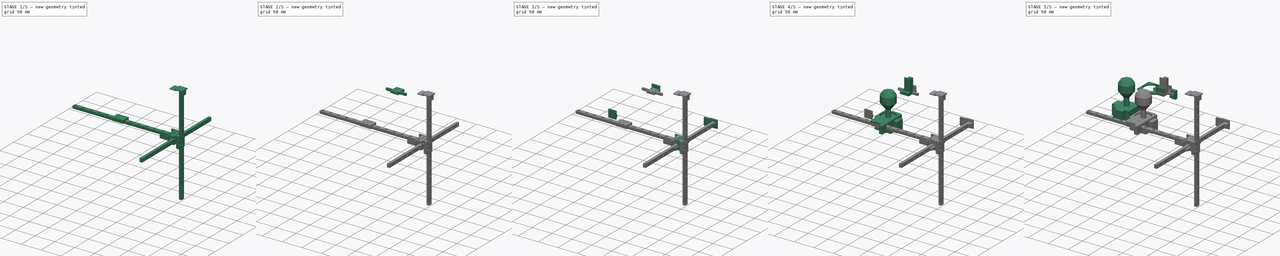
[diagram: build sequence overview — one tinted view per stage of 5, left to right]
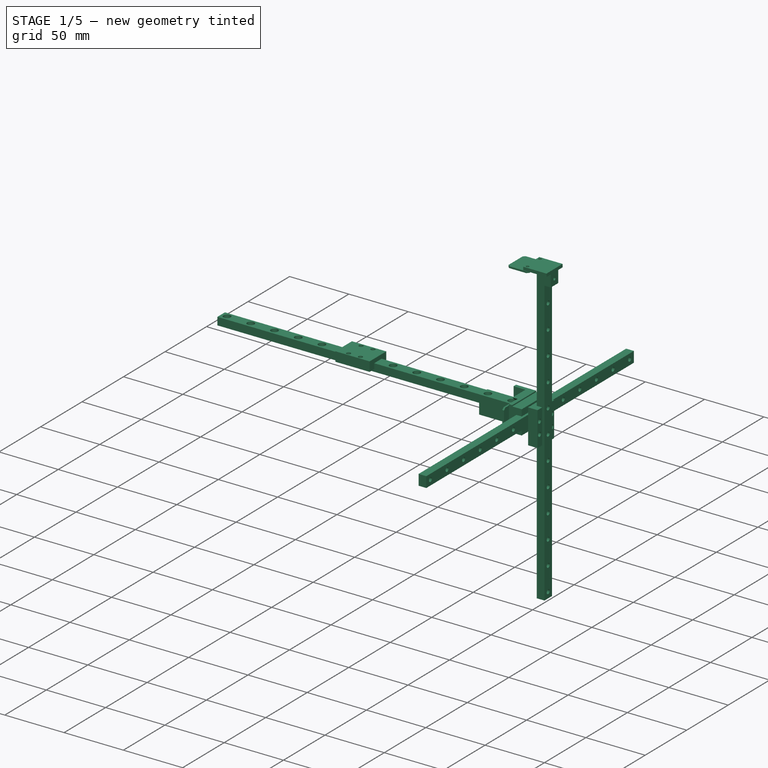
[diagram: stage 1 of 5 — iso view after this stage's code; geometry added in this stage tinted green]
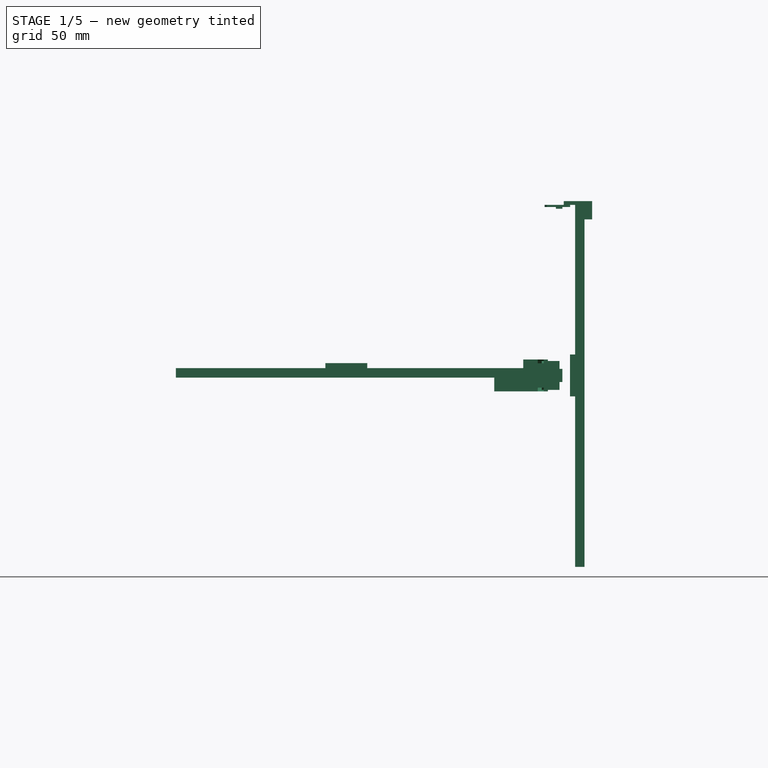
[diagram: stage 1 of 5 — front view after this stage's code; geometry added in this stage tinted green]
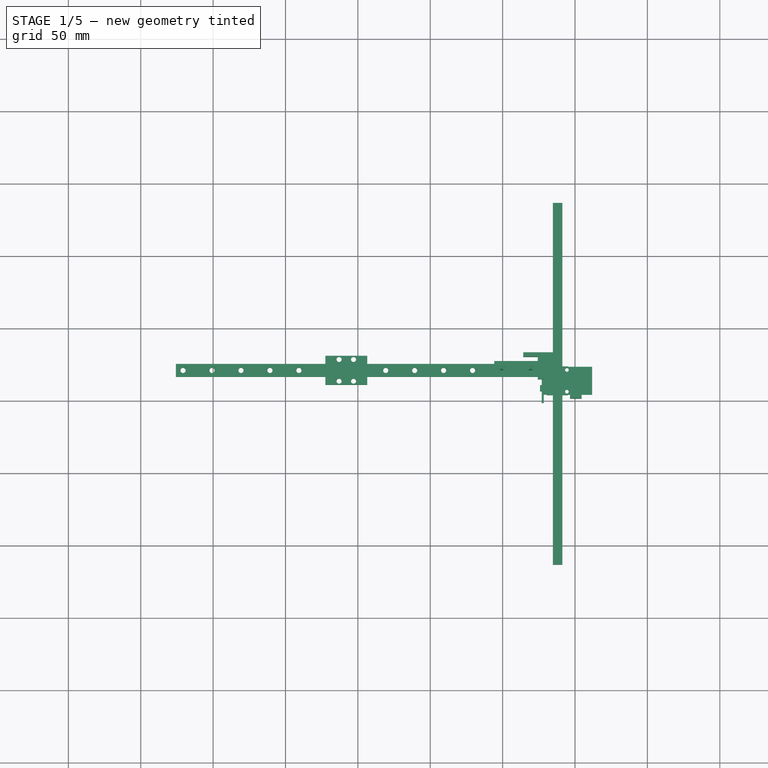
[diagram: stage 1 of 5 — top view after this stage's code; geometry added in this stage tinted green]
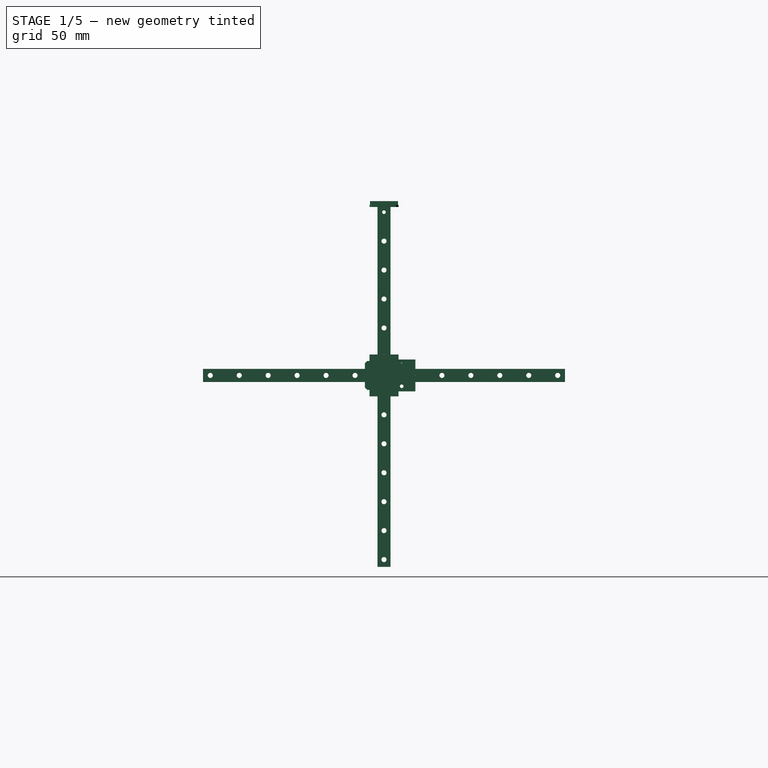
[diagram: stage 1 of 5 — right view after this stage's code; geometry added in this stage tinted green]
FCSTD DOCUMENT  (FreeCAD 0.21R33668 +26 (Git))
Label: v6.3M
License: All rights reserved
LicenseURL: http://en.wikipedia.org/wiki/All_rights_reserved
objects: App::FeaturePython×44, Sketcher::SketchObject×22, PartDesign::Pad×14, Part::FeaturePython×12, Spreadsheet::Sheet×11, PartDesign::Pocket×7, PartDesign::Body×7, PartDesign::ShapeBinder×3, App::DocumentObjectGroup×3, PartDesign::LinearPattern×2, PartDesign::Revolution×1
note: 90 computed .brp shape members not serialized (recipe doc carries the construction recipe); baked Part::Feature solids carry a one-line shape summary decoded from their .brp

FEATURE [Part::FeaturePython] XYConnector_001  # a2plus imported part (geometry in sourceFile) (typed FeaturePython)
  Placement = pos=(184.735,99.025,1.5) rot=(-0.707107,0,0.707107;3.14159rad)
  a2p_Version = V0.1
  fixedPosition = false
  localSourceObject = Body006
  objectType = a2pPart
  sourceFile = converted
  subassemblyImport = false
  timeLastImport = 1.66263e+09
  updateColors = true
FEATURE [Part::FeaturePython] ProtoRail_001  # a2plus imported part (geometry in sourceFile) (typed FeaturePython)
  Placement = pos=(174.235,-31.2,6.5) rot=(0,0,1;1.5708rad)
  a2p_Version = V0.1
  fixedPosition = false
  localSourceObject = Body
  objectType = a2pPart
  sourceFile = converted
  subassemblyImport = false
  timeLastImport = 1.66263e+09
  updateColors = true
FEATURE [App::FeaturePython] circularEdge_001  label="circularEdge_001__JXConnector_001"  # a2plus constraint (typed FeaturePython)
  Object1 = Joystick_Place_Holder_001
  Object2 = JXConnector_001
  ParentTreeObject = -> Joystick_Place_Holder_001
  SubElement1 = Edge34
  SubElement2 = Edge27
  Suppressed = false
  Type = circularEdge
  directionConstraint = 0
  lockRotation = false
  offset = 0
FEATURE [App::FeaturePython] circularEdge_001_mirror  label="circularEdge_001__Joystick Place Holder_001"  # a2plus constraint (typed FeaturePython)
  Object1 = Joystick_Place_Holder_001
  Object2 = JXConnector_001
  ParentTreeObject = -> JXConnector_001
  SubElement1 = Edge34
  SubElement2 = Edge27
  Suppressed = false
  Type = circularEdge
  directionConstraint = 0
  lockRotation = false
  offset = 0
FEATURE [App::FeaturePython] circularEdge_002  label="circularEdge_002__Joystick Place Holder_001"  # a2plus constraint (typed FeaturePython)
  Object1 = JXConnector_001
  Object2 = Joystick_Place_Holder_001
  ParentTreeObject = -> JXConnector_001
  SubElement1 = Edge26
  SubElement2 = Edge36
  Suppressed = false
  Type = circularEdge
  directionConstraint = 0
  lockRotation = false
  offset = 0
FEATURE [App::FeaturePython] circularEdge_002_mirror  label="circularEdge_002__JXConnector_001"  # a2plus constraint (typed FeaturePython)
  Object1 = JXConnector_001
  Object2 = Joystick_Place_Holder_001
  ParentTreeObject = -> Joystick_Place_Holder_001
  SubElement1 = Edge26
  SubElement2 = Edge36
  Suppressed = false
  Type = circularEdge
  directionConstraint = 0
  lockRotation = false
  offset = 0
FEATURE [App::FeaturePython] circularEdge_003  label="circularEdge_003__JXConnector_001"  # a2plus constraint (typed FeaturePython)
  Object1 = ProtoRail_001
  Object2 = JXConnector_001
  ParentTreeObject = -> ProtoRail_001
  SubElement1 = Edge126
  SubElement2 = Edge24
  Suppressed = false
  Type = circularEdge
  directionConstraint = 0
  lockRotation = false
  offset = 0
FEATURE [App::FeaturePython] circularEdge_003_mirror  label="circularEdge_003__ProtoRail_001"  # a2plus constraint (typed FeaturePython)
  Object1 = ProtoRail_001
  Object2 = JXConnector_001
  ParentTreeObject = -> JXConnector_001
  SubElement1 = Edge126
  SubElement2 = Edge24
  Suppressed = false
  Type = circularEdge
  directionConstraint = 0
  lockRotation = false
  offset = 0
FEATURE [App::FeaturePython] circularEdge_004  label="circularEdge_004__JXConnector_001"  # a2plus constraint (typed FeaturePython)
  Object1 = ProtoRail_001
  Object2 = JXConnector_001
  ParentTreeObject = -> ProtoRail_001
  SubElement1 = Edge127
  SubElement2 = Edge23
  Suppressed = false
  Type = circularEdge
  directionConstraint = 0
  lockRotation = false
  offset = 0
FEATURE [App::FeaturePython] circularEdge_004_mirror  label="circularEdge_004__ProtoRail_001"  # a2plus constraint (typed FeaturePython)
  Object1 = ProtoRail_001
  Object2 = JXConnector_001
  ParentTreeObject = -> JXConnector_001
  SubElement1 = Edge127
  SubElement2 = Edge23
  Suppressed = false
  Type = circularEdge
  directionConstraint = 0
  lockRotation = false
  offset = 0
FEATURE [Part::FeaturePython] ProtoRail_002  # a2plus imported part (geometry in sourceFile) (typed FeaturePython)
  Placement = pos=(184.735,-165.425,1.49998) rot=(0,-1,0;1.5708rad)
  a2p_Version = V0.1
  fixedPosition = false
  localSourceObject = Body
  objectType = a2pPart
  sourceFile = converted
  subassemblyImport = false
  timeLastImport = 1.66263e+09
  updateColors = true
FEATURE [Part::FeaturePython] ProtoRail_003  # a2plus imported part (geometry in sourceFile) (typed FeaturePython)
  Placement = pos=(200.035,-40.425,-130.725) rot=(0.57735,-0.57735,-0.57735;2.0944rad)
  a2p_Version = V0.1
  fixedPosition = false
  localSourceObject = Body
  objectType = a2pPart
  sourceFile = converted
  subassemblyImport = false
  timeLastImport = 1.66263e+09
  updateColors = true
FEATURE [Part::FeaturePython] Y_Sensor_001  label="Y Sensor_001"  # a2plus imported part (geometry in sourceFile) (typed FeaturePython)
  Placement = pos=(178.435,-44.8,1.5) rot=(0.57735,0.57735,0.57735;4.18879rad)
  a2p_Version = V0.1
  fixedPosition = false
  localSourceObject = Body007
  objectType = a2pPart
  sourceFile = converted
  subassemblyImport = false
  timeLastImport = 1.66263e+09
  updateColors = true
FEATURE [PartDesign::Body] Body009  label="YZConnector"
  Group = -> [ReferencePad002001,Sketch027,Pad016,Sketch028,Pocket008,Sketch032,Pad019]
  Origin = -> Origin009
  Tip = -> Pad019
FEATURE [App::DocumentObjectGroup] Group001  label="Parts"
  Group = -> [Body006,Body003,Body007,Body008,Body009,Body,Body010]
FEATURE [Part::FeaturePython] Y_Sensor_Holder_001001  label="ZSensorHolder"  # a2plus imported part (geometry in sourceFile) (typed FeaturePython)
  Placement = pos=(211.835,-40.425,109.275) rot=(-0.57735,-0.57735,0.57735;2.0944rad)
  a2p_Version = V0.1
  fixedPosition = false
  localSourceObject = Body010
  objectType = a2pPart
  sourceFile = converted
  subassemblyImport = false
  timeLastImport = 1.66263e+09
  updateColors = true
FEATURE [Part::FeaturePython] Sensor001_002  label="ZSenor"  # a2plus imported part (geometry in sourceFile) (typed FeaturePython)
  Placement = pos=(187.785,-40.425,119.275) rot=(0.57735,0.57735,0.57735;2.0944rad)
  a2p_Version = V0.1
  fixedPosition = false
  localSourceObject = Body007
  objectType = a2pPart
  sourceFile = converted
  subassemblyImport = false
  timeLastImport = 1.66263e+09
  updateColors = true
FEATURE [App::DocumentObjectGroup] Group002  label="Assembly"
  Group = -> [XYConnector_001,Joystick_Place_Holder_001,JXConnector_001,YZConnector_001,ProtoRail_001,ProtoRail_002,ProtoRail_003,Y_Sensor_001,Y_Sensor_Holder_001,Sensor001_001,Y_Sensor_Holder_001001,Sensor001_002]
FEATURE [App::FeaturePython] circularEdge_018  label="circularEdge_018__ProtoRail_003"  # a2plus constraint (typed FeaturePython)
  Object1 = Y_Sensor_Holder_001001
  Object2 = ProtoRail_003
  ParentTreeObject = -> Y_Sensor_Holder_001001
  SubElement1 = Edge19
  SubElement2 = Edge39
  Suppressed = false
  Type = circularEdge
  directionConstraint = 0
  lockRotation = false
  offset = 0
FEATURE [App::FeaturePython] circularEdge_018_mirror  label="circularEdge_018__ZSensorHolder"  # a2plus constraint (typed FeaturePython)
  Object1 = Y_Sensor_Holder_001001
  Object2 = ProtoRail_003
  ParentTreeObject = -> ProtoRail_003
  SubElement1 = Edge19
  SubElement2 = Edge39
  Suppressed = false
  Type = circularEdge
  directionConstraint = 0
  lockRotation = false
  offset = 0
FEATURE [App::FeaturePython] planesParallel_002  label="planesParallel_002__ZSensorHolder"  # a2plus constraint (typed FeaturePython)
  Object1 = ProtoRail_003
  Object2 = Y_Sensor_Holder_001001
  ParentTreeObject = -> ProtoRail_003
  SubElement1 = Face10
  SubElement2 = Face7
  Suppressed = false
  Type = planesParallel
  directionConstraint = 1
FEATURE [App::FeaturePython] planesParallel_002_mirror  label="planesParallel_002__ProtoRail_003"  # a2plus constraint (typed FeaturePython)
  Object1 = ProtoRail_003
  Object2 = Y_Sensor_Holder_001001
  ParentTreeObject = -> Y_Sensor_Holder_001001
  SubElement1 = Face10
  SubElement2 = Face7
  Suppressed = false
  Type = planesParallel
  directionConstraint = 1
FEATURE [App::FeaturePython] circularEdge_019  label="circularEdge_019__ZSensorHolder"  # a2plus constraint (typed FeaturePython)
  Object1 = Sensor001_002
  Object2 = Y_Sensor_Holder_001001
  ParentTreeObject = -> Sensor001_002
  SubElement1 = Edge17
  SubElement2 = Edge26
  Suppressed = false
  Type = circularEdge
  directionConstraint = 0
  lockRotation = false
  offset = 0
FEATURE [App::FeaturePython] circularEdge_019_mirror  label="circularEdge_019__ZSenor"  # a2plus constraint (typed FeaturePython)
  Object1 = Sensor001_002
  Object2 = Y_Sensor_Holder_001001
  ParentTreeObject = -> Y_Sensor_Holder_001001
  SubElement1 = Edge17
  SubElement2 = Edge26
  Suppressed = false
  Type = circularEdge
  directionConstraint = 0
  lockRotation = false
  offset = 0
FEATURE [App::FeaturePython] circularEdge_020  label="circularEdge_020__ZSenor"  # a2plus constraint (typed FeaturePython)
  Object1 = Y_Sensor_Holder_001001
  Object2 = Sensor001_002
  ParentTreeObject = -> Y_Sensor_Holder_001001
  SubElement1 = Edge27
  SubElement2 = Edge16
  Suppressed = false
  Type = circularEdge
  directionConstraint = 0
  lockRotation = false
  offset = 0
FEATURE [App::FeaturePython] circularEdge_020_mirror  label="circularEdge_020__ZSensorHolder"  # a2plus constraint (typed FeaturePython)
  Object1 = Y_Sensor_Holder_001001
  Object2 = Sensor001_002
  ParentTreeObject = -> Sensor001_002
  SubElement1 = Edge27
  SubElement2 = Edge16
  Suppressed = false
  Type = circularEdge
  directionConstraint = 0
  lockRotation = false
  offset = 0
FEATURE [App::FeaturePython] circularEdge_005  label="circularEdge_005__ProtoRail_001"  # a2plus constraint (typed FeaturePython)
  Object1 = XYConnector_001
  Object2 = ProtoRail_001
  ParentTreeObject = -> XYConnector_001
  SubElement1 = Edge63
  SubElement2 = Edge28
  Suppressed = false
  Type = circularEdge
  directionConstraint = 0
  lockRotation = false
  offset = 0
FEATURE [App::FeaturePython] circularEdge_005_mirror  label="circularEdge_005__XYConnector_001"  # a2plus constraint (typed FeaturePython)
  Object1 = XYConnector_001
  Object2 = ProtoRail_001
  ParentTreeObject = -> ProtoRail_001
  SubElement1 = Edge63
  SubElement2 = Edge28
  Suppressed = false
  Type = circularEdge
  directionConstraint = 0
  lockRotation = false
  offset = 0
FEATURE [App::FeaturePython] circularEdge_006  label="circularEdge_006__ProtoRail_001"  # a2plus constraint (typed FeaturePython)
  Object1 = XYConnector_001
  Object2 = ProtoRail_001
  ParentTreeObject = -> XYConnector_001
  SubElement1 = Edge64
  SubElement2 = Edge27
  Suppressed = false
  Type = circularEdge
  directionConstraint = 0
  lockRotation = false
  offset = 0
FEATURE [App::FeaturePython] circularEdge_006_mirror  label="circularEdge_006__XYConnector_001"  # a2plus constraint (typed FeaturePython)
  Object1 = XYConnector_001
  Object2 = ProtoRail_001
  ParentTreeObject = -> ProtoRail_001
  SubElement1 = Edge64
  SubElement2 = Edge27
  Suppressed = false
  Type = circularEdge
  directionConstraint = 0
  lockRotation = false
  offset = 0
FEATURE [App::FeaturePython] circularEdge_007  label="circularEdge_007__XYConnector_001"  # a2plus constraint (typed FeaturePython)
  Object1 = Y_Sensor_001
  Object2 = XYConnector_001
  ParentTreeObject = -> Y_Sensor_001
  SubElement1 = Edge17
  SubElement2 = Edge42
  Suppressed = false
  Type = circularEdge
  directionConstraint = 1
  lockRotation = false
  offset = 0
FEATURE [App::FeaturePython] circularEdge_007_mirror  label="circularEdge_007__Y Sensor_001"  # a2plus constraint (typed FeaturePython)
  Object1 = Y_Sensor_001
  Object2 = XYConnector_001
  ParentTreeObject = -> XYConnector_001
  SubElement1 = Edge17
  SubElement2 = Edge42
  Suppressed = false
  Type = circularEdge
  directionConstraint = 1
  lockRotation = false
  offset = 0
FEATURE [App::FeaturePython] circularEdge_008  label="circularEdge_008__Y Sensor_001"  # a2plus constraint (typed FeaturePython)
  Object1 = XYConnector_001
  Object2 = Y_Sensor_001
  ParentTreeObject = -> XYConnector_001
  SubElement1 = Edge43
  SubElement2 = Edge16
  Suppressed = false
  Type = circularEdge
  directionConstraint = 1
  lockRotation = false
  offset = 0
FEATURE [App::FeaturePython] circularEdge_008_mirror  label="circularEdge_008__XYConnector_001"  # a2plus constraint (typed FeaturePython)
  Object1 = XYConnector_001
  Object2 = Y_Sensor_001
  ParentTreeObject = -> Y_Sensor_001
  SubElement1 = Edge43
  SubElement2 = Edge16
  Suppressed = false
  Type = circularEdge
  directionConstraint = 1
  lockRotation = false
  offset = 0
FEATURE [App::FeaturePython] circularEdge_013  label="circularEdge_013__ProtoRail_002"  # a2plus constraint (typed FeaturePython)
  Object1 = XYConnector_001
  Object2 = ProtoRail_002
  ParentTreeObject = -> XYConnector_001
  SubElement1 = Edge20
  SubElement2 = Edge128
  Suppressed = false
  Type = circularEdge
  directionConstraint = 0
  lockRotation = false
  offset = 0
FEATURE [App::FeaturePython] circularEdge_013_mirror  label="circularEdge_013__XYConnector_001"  # a2plus constraint (typed FeaturePython)
  Object1 = XYConnector_001
  Object2 = ProtoRail_002
  ParentTreeObject = -> ProtoRail_002
  SubElement1 = Edge20
  SubElement2 = Edge128
  Suppressed = false
  Type = circularEdge
  directionConstraint = 0
  lockRotation = false
  offset = 0
FEATURE [App::FeaturePython] circularEdge_014  label="circularEdge_014__ProtoRail_002"  # a2plus constraint (typed FeaturePython)
  Object1 = XYConnector_001
  Object2 = ProtoRail_002
  ParentTreeObject = -> XYConnector_001
  SubElement1 = Edge23
  SubElement2 = Edge125
  Suppressed = false
  Type = circularEdge
  directionConstraint = 0
  lockRotation = false
  offset = 0
FEATURE [App::FeaturePython] circularEdge_014_mirror  label="circularEdge_014__XYConnector_001"  # a2plus constraint (typed FeaturePython)
  Object1 = XYConnector_001
  Object2 = ProtoRail_002
  ParentTreeObject = -> ProtoRail_002
  SubElement1 = Edge23
  SubElement2 = Edge125
  Suppressed = false
  Type = circularEdge
  directionConstraint = 0
  lockRotation = false
  offset = 0
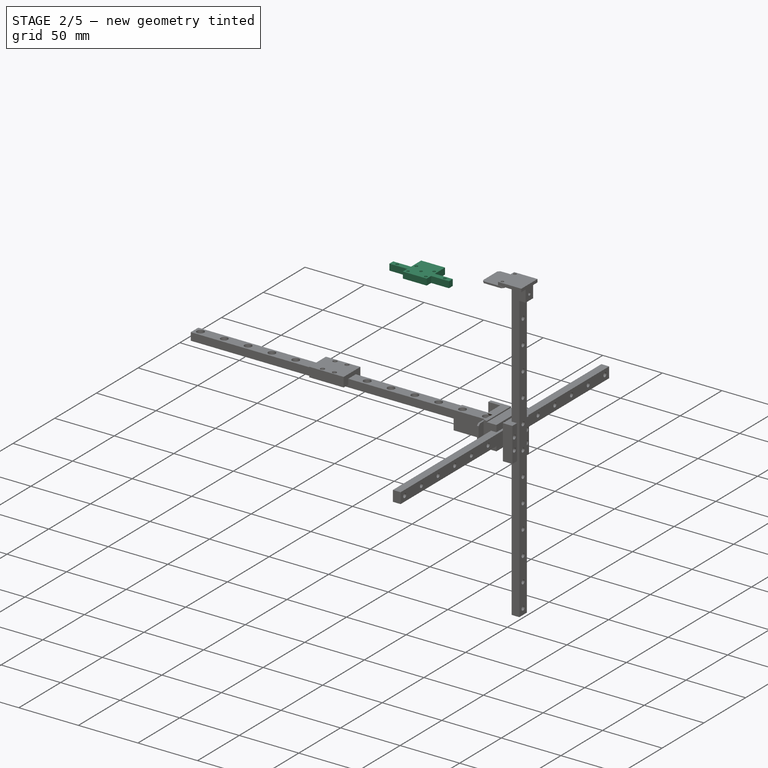
[diagram: stage 2 of 5 — iso view after this stage's code; geometry added in this stage tinted green]
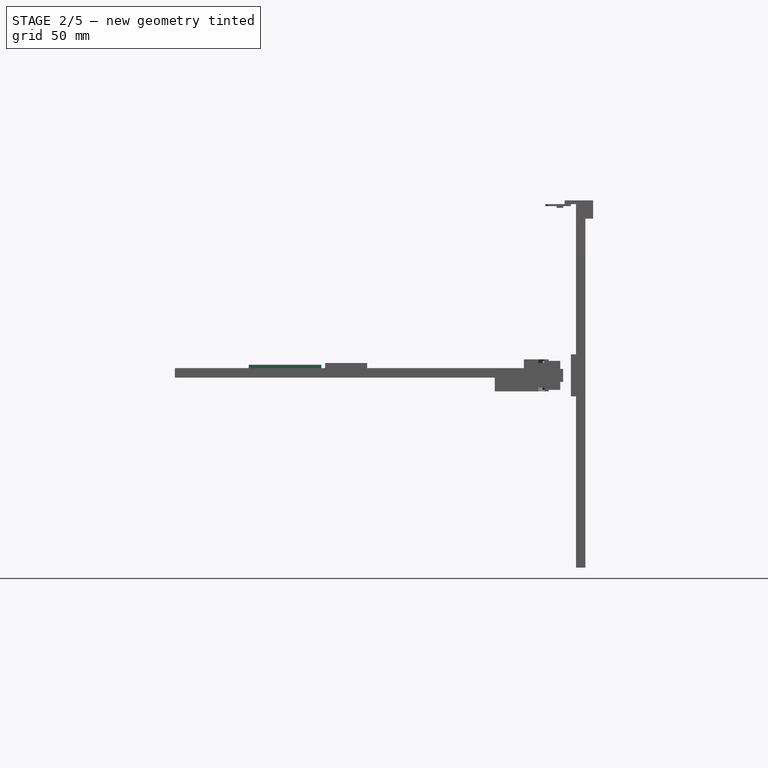
[diagram: stage 2 of 5 — front view after this stage's code; geometry added in this stage tinted green]
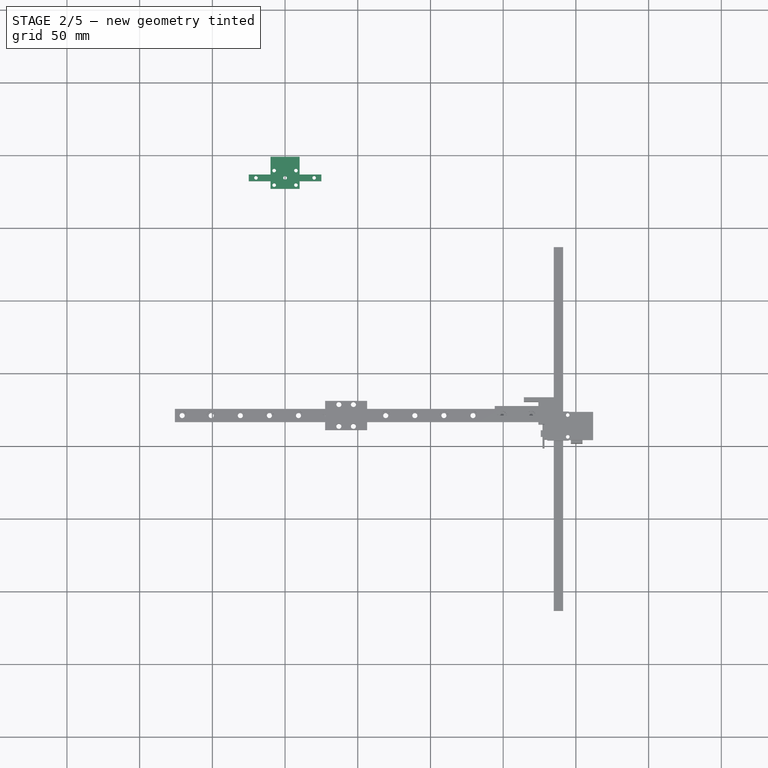
[diagram: stage 2 of 5 — top view after this stage's code; geometry added in this stage tinted green]
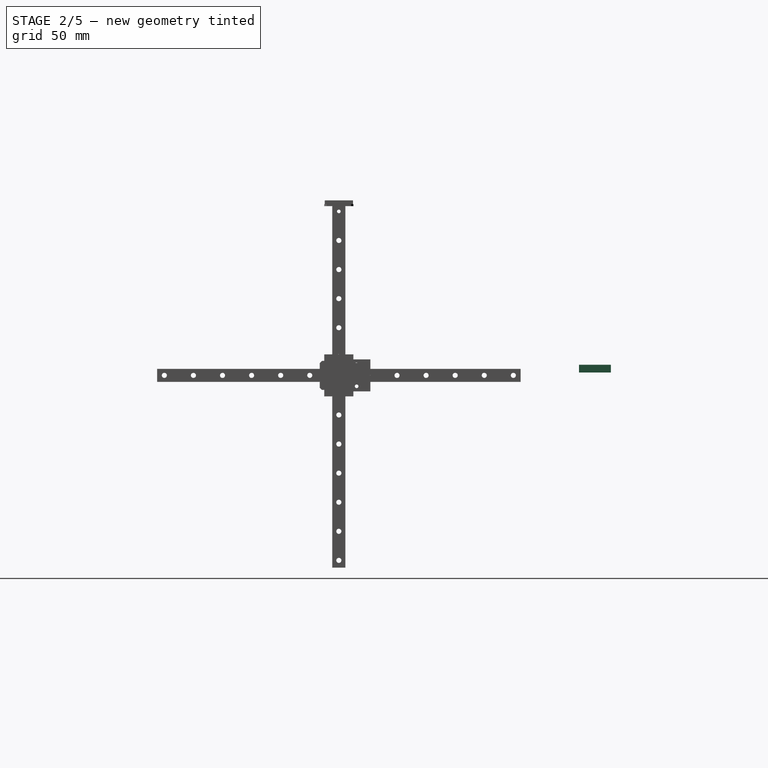
[diagram: stage 2 of 5 — right view after this stage's code; geometry added in this stage tinted green]
FEATURE [Spreadsheet::Sheet] Spreadsheet  label="Rail"
  cells = A2='Axial Offset; B2(Axial_Offset)==(RL - HL * 0.5) * 0.5; A3='Screw; B3(Screw)='M 3x0.5Px8L; A4='Name; B4(Name)='MGN9C; A5='Screw Length; B5(SL)=8; A6='Rail Length RL (Axial); B6(RL)=250; A7='Rail Width RW; B7(RW)=9; A8='Rail Height RH; B8(RH)=6.5; A9='Rail First Screw Offset; B9(RFSO)=5; A10='Rail Screw To Screw Offset; B10(RS2SO)=20; A11='Rail Screw Head Inlet ; B11(RSHI)=3.5; A14='Head Height HH; B14(HH)==10 - 2; A15='Head Length HL (Axial); B15(HL)=28.9; A16='Head Width HW; B16(HW)=20; A17='Head Screw Width Spacing; B17(HSW)=15; A18='Head Screw Length Spacing; B18(HSL)=10; A19='Rail Base To Head Base; B19(RB2HB)=2; A20='Head Screw Depth; B20(HeadScrewDepth)==Spreadsheet009.B6 - 3.3; A22='Screw Head Diameter; B22(SHD)=6; A23='Screw Body Diameter; B23(SBD)=3.5; A25='Remaining Screw Length Head; B25(RSLH)==<<Screws>>.B6 - (B29 - 0.5); A26='Remaining Screw Length Rail; B26(RSLR)==<<Screws>>.B6 - (RH - B28); A28='Rail Screw Head Inlet Depth; B28==4.3 - 0.5; A29='Head Screw Body Inlet Depth; B29==5 - 0.5
FEATURE [Spreadsheet::Sheet] Spreadsheet001  label="Sensor"
  cells = A2='Width; B2(Width)=20; A3='Height; B3(Height)=17.6; A4='Depth; B4(Depth)=1.4; A5='Plate Left To Sensor Right; B5=11.5; A6='Plate Right To Sensor Left; B6=11.5; A7='Plate Bottom to Sensor Top; B7=12.3; A8='Plate Top to Sensor Bottom; B8=9.8; A10='Depth with Sensor; B10=2.6; A11='Champher Diameter; B11=24.4; A13='Hole Diameter; B13(ScrewDiameter)=2.6; A14='Screw Center Distance ; B14(ScrewCenterDistance)==<<Rail>>.HSW; A15='Screw To Edge Distance; B15(ScrewToEdgeDistance)=0.9; A17='Sensor Height; B17(SensorHeight)==B7 - Height + B8; A18='Sensor Width; B18(SensorWidth)==B5 - Width + B6; A19='Sensor Depth; B19(SensorDepth)==B10 - Depth
FEATURE [Spreadsheet::Sheet] Spreadsheet002  label="X"
  cells = A5='Rail Inlet Depth; B5(RID)=0; A6='Rail Center Offset; B6(RCO)==<<Rail>>.RW / 2; A7='Strength; B7(STR)==<<Rail>>.HSL + <<Rail>>.SL; A8='Strength Vertical; B8(VSTR)==<<Rail>>.RW; A10='Length; B10(LEN)==<<Rail>>.RS2SO * 4 + <<Rail>>.RFSO * 2; A11='Height; A12='Width
FEATURE [Spreadsheet::Sheet] Spreadsheet003  label="Y"
  cells = A5='Carrier Width; B5(CWIDTH)==<<X>>.LEN + 2 * <<General>>.Safety; A6='Carrier Arm Width; B6(CAW)=20; A9='Rail Center Offset; B9(RCO)==<<Rail>>.RW / 2; A10='Rail Inlet Depth; B10(RID)=1
FEATURE [Spreadsheet::Sheet] Spreadsheet004  label="Z"
FEATURE [Sketcher::SketchObject] Sketch
  FullyConstrained = true
  MapMode = 5
  Support = -> [XY_Plane]
  expr: Constraints[10] = <<Rail>>.RW
  expr: Constraints[9] = <<Rail>>.RL
  sketch-geometry (4):
    g0: LineSegment StartX=4.5 StartY=0 StartZ=0 EndX=-4.5 EndY=0 EndZ=0
    g1: LineSegment StartX=-4.5 StartY=0 StartZ=0 EndX=-4.5 EndY=250 EndZ=0
    g2: LineSegment StartX=-4.5 StartY=250 StartZ=0 EndX=4.5 EndY=250 EndZ=0
    g3: LineSegment StartX=4.5 StartY=250 StartZ=0 EndX=4.5 EndY=0 EndZ=0
  constraints (11):
    c: Coincident(g0,g1)
    c: Coincident(g1,g2)
    c: Coincident(g2,g3)
    c: Coincident(g3,g0)
    c: Horizontal(g0)
    c: Horizontal(g2)
    c: Vertical(g1)
    c: Vertical(g3)
    c: Symmetric(g0,g0,g-1)
    c: DistanceY(g3,g3) = 250
    c: DistanceX(g0,g0) = 9
FEATURE [PartDesign::Pad] Pad
  Direction = (0,0,1)
  Length = 6.5
  Length2 = 100
  Profile = -> Sketch
  Reversed = true
  Type = 0
  expr: Length = <<Rail>>.RH
FEATURE [Sketcher::SketchObject] Sketch001
  FullyConstrained = true
  MapMode = 5
  Support = -> [XY_Plane]
  expr: Constraints[1] = <<Rail>>.RFSO
  expr: Constraints[2] = <<Rail>>.SBD / 2
  sketch-geometry (1):
    g0: Circle CenterX=0 CenterY=5 CenterZ=0 NormalX=0 NormalY=0 NormalZ=1 AngleXU=0 Radius=1.75
  constraints (3):
    c: PointOnObject(g0,g-2)
    c: DistanceY(g0) = 5
    c: Radius(g0) = 1.75
FEATURE [PartDesign::Pocket] Pocket
  BaseFeature = -> Pad
  Direction = (1,1,1)
  Length = 6.5
  Length2 = 100
  Profile = -> Sketch001
  Type = 0
  expr: Length = <<Rail>>.RH
FEATURE [PartDesign::LinearPattern] LinearPattern
  BaseFeature = -> Pocket
  Direction = -> Y_Axis
  Length = 240
  Occurrences = 3
  Originals = -> [Pocket]
  expr: Length = <<Rail>>.RL - <<Rail>>.RFSO * 2
  expr: Occurrences = (<<Rail>>.RL - <<Rail>>.RFSO * 2) / <<Rail>>.RS2SO + 1
FEATURE [Sketcher::SketchObject] Sketch002
  FullyConstrained = true
  MapMode = 5
  Support = -> [XY_Plane]
  expr: Constraints[0] = <<Rail>>.SHD / 2
  expr: Constraints[2] = <<Rail>>.RFSO
  sketch-geometry (1):
    g0: Circle CenterX=0 CenterY=5 CenterZ=0 NormalX=0 NormalY=0 NormalZ=1 AngleXU=0 Radius=3
  constraints (3):
    c: Radius(g0) = 3
    c: PointOnObject(g0,g-2)
    c: DistanceY(g-1,g0) = 5
FEATURE [PartDesign::Pocket] Pocket001
  BaseFeature = -> LinearPattern
  Direction = (1,1,1)
  Length = 3.5
  Length2 = 100
  Profile = -> Sketch002
  Type = 0
  expr: Length = <<Rail>>.RSHI
FEATURE [PartDesign::LinearPattern] LinearPattern001
  BaseFeature = -> Pocket001
  Direction = -> Y_Axis
  Length = 240
  Occurrences = 3
  Originals = -> [Pocket001]
  expr: Length = <<Rail>>.RL - <<Rail>>.RFSO * 2
  expr: Occurrences = (<<Rail>>.RL - <<Rail>>.RFSO * 2) / <<Rail>>.RS2SO + 1
FEATURE [Spreadsheet::Sheet] Spreadsheet005  label="Joystick"
  cells = A2='Demo Angles; A3='X; B3(DEMO_ANGLE_X)=0; A4='Y; B4(DEMO_ANGLE_Y)=1; A5='Z; B5(DEMO_ANGLE_Z)=0; A6='Angle; B6(DEMO_ANGLE)=0; A7='Screw Distance; B7(SD)=32.5; A9='Screw; B9='M2x12; A10='Screw Body Diameter; B10(SBD)=2; A11='Base Depth; B11(BD)=40.4; A12='Base Width; B12(BW)=40.4; A13='Base Height; B13(BH)=25.5; A14='Potentiometer Extrusion; B14(PE)==49.6 - 40.4; A15='Potentiometer Extrusion Depth; B15(PED)==BD + PE; A16='Potentiometer Extrusion Width; B16(PEW)==BD + 2 * PE; A18='Joystick Handle Height; B18(JHH)=39.5; A19='Joystick Diameter; B19(JD)=35; A22='Base to Joystick Top; B22(B2JT)=84
FEATURE [Sketcher::SketchObject] Sketch005
  AttachmentOffset = pos=(0,0,-4.5) rot=(0,0,1;0rad)
  FullyConstrained = true
  MapMode = 5
  Placement = pos=(0,0,-4.5) rot=(0,0,1;0rad)
  Support = -> [XY_Plane]
  expr: .AttachmentOffset.Base.z = -(<<Rail>>.RH - <<Rail>>.RB2HB)
  expr: Constraints[10] = <<Rail>>.Axial_Offset
  expr: Constraints[11] = <<Rail>>.SBD / 2
  expr: Constraints[12] = <<Rail>>.SBD / 2
  expr: Constraints[13] = <<Rail>>.SBD / 2
  expr: Constraints[14] = <<Rail>>.SBD / 2
  expr: Constraints[29] = <<Rail>>.HSL
  expr: Constraints[30] = <<Rail>>.HSW
  expr: Constraints[7] = <<Rail>>.HL
  expr: Constraints[8] = <<Rail>>.HW
  sketch-geometry (13):
    g0: LineSegment StartX=-10 StartY=146.675 StartZ=0 EndX=10 EndY=146.675 EndZ=0
    g1: LineSegment StartX=10 StartY=146.675 StartZ=0 EndX=10 EndY=117.775 EndZ=0
    g2: LineSegment StartX=10 StartY=117.775 StartZ=0 EndX=-10 EndY=117.775 EndZ=0
    g3: LineSegment StartX=-10 StartY=117.775 StartZ=0 EndX=-10 EndY=146.675 EndZ=0
    g4: Circle CenterX=-7.5 CenterY=137.225 CenterZ=0 NormalX=0 NormalY=0 NormalZ=1 AngleXU=0 Radius=1.75
    g5: Circle CenterX=7.5 CenterY=137.225 CenterZ=0 NormalX=0 NormalY=0 NormalZ=1 AngleXU=0 Radius=1.75
    g6: Circle CenterX=7.5 CenterY=127.225 CenterZ=0 NormalX=0 NormalY=0 NormalZ=1 AngleXU=0 Radius=1.75
    g7: Circle CenterX=-7.5 CenterY=127.225 CenterZ=0 NormalX=0 NormalY=0 NormalZ=1 AngleXU=0 Radius=1.75
    g8: LineSegment StartX=-7.5 StartY=137.225 StartZ=0 EndX=7.5 EndY=137.225 EndZ=0
    g9: LineSegment StartX=7.5 StartY=137.225 StartZ=0 EndX=7.5 EndY=127.225 EndZ=0
    g10: LineSegment StartX=7.5 StartY=127.225 StartZ=0 EndX=-7.5 EndY=127.225 EndZ=0
    g11: LineSegment StartX=-7.5 StartY=127.225 StartZ=0 EndX=-7.5 EndY=137.225 EndZ=0
    g12: GeomPoint X=5.8e-15 Y=132.225 Z=0
  constraints (31):
    c: Coincident(g0,g1)
    c: Coincident(g1,g2)
    c: Coincident(g2,g3)
    c: Coincident(g3,g0)
    c: Horizontal(g0)
    c: Vertical(g1)
    c: Vertical(g3)
    c: DistanceY(g1,g1) = 28.9
    c: DistanceX(g0,g0) = 20
    c: Symmetric(g2,g1,g-2)
    c: DistanceY(g1) = 117.775
    c: Radius(g4) = 1.75
    c: Radius(g5) = 1.75
    c: Radius(g6) = 1.75
    c: Radius(g7) = 1.75
    c: Coincident(g8,g9)
    c: Coincident(g9,g10)
    c: Coincident(g10,g11)
    c: Coincident(g11,g8)
    c: Horizontal(g8)
    c: Horizontal(g10)
    c: Vertical(g9)
    c: Vertical(g11)
    c: Coincident(g8,g4)
    c: Coincident(g9,g6)
    c: Coincident(g5,g8)
    c: Coincident(g7,g10)
    c: Symmetric(g5,g7,g12)
    c: Symmetric(g0,g2,g12)
    c: DistanceY(g9,g9) = 10
    c: DistanceX(g8,g8) = 15
FEATURE [PartDesign::Pad] Pad002
  BaseFeature = -> LinearPattern001
  Direction = (0,0,1)
  Length = 8
  Length2 = 100
  Profile = -> Sketch005
  Type = 0
  expr: Length = <<Rail>>.HH
FEATURE [PartDesign::Body] Body006  label="XYConnector"
  Group = -> [ReferencePad007,Sketch016,Pad010,Sketch019,Pocket005,Sketch020,Pocket006,Sketch021,Pad011,Sketch022,Pocket007,Sketch026,Pad015]
  Origin = -> Origin006
  Tip = -> Pad015
FEATURE [PartDesign::ShapeBinder] ReferencePad002001
  Placement = pos=(0,0,8) rot=(0,0,1;0rad)
  Support = -> [Pad002]
  TraceSupport = false
FEATURE [Sketcher::SketchObject] Sketch027
  ExternalGeometry = -> [ReferencePad002001]
  FullyConstrained = true
  MapMode = 5
  Placement = pos=(0,0,3.5) rot=(0,0,1;0rad)
  Support = -> [ReferencePad002001]
  expr: Constraints[28] = <<Screws>>.B4
  expr: Constraints[29] = <<Screws>>.B4
  expr: Constraints[30] = <<Screws>>.B4
  expr: Constraints[35] = <<Rail>>.RS2SO
  expr: Constraints[36] = -<<Rail>>.RS2SO
  expr: Constraints[37] = <<Rail>>.RFSO
  expr: Constraints[4] = <<Screws>>.B4
  expr: Constraints[5] = <<Screws>>.B4
  expr: Constraints[6] = <<Screws>>.B4
  expr: Constraints[7] = <<Screws>>.B4
  sketch-geometry (31):
    g0: Circle CenterX=7.5 CenterY=137.225 CenterZ=0 NormalX=0 NormalY=0 NormalZ=1 AngleXU=0 Radius=1.25
    g1: Circle CenterX=7.5 CenterY=127.225 CenterZ=0 NormalX=0 NormalY=0 NormalZ=1 AngleXU=0 Radius=1.25
    g2: Circle CenterX=-7.5 CenterY=127.225 CenterZ=0 NormalX=0 NormalY=0 NormalZ=1 AngleXU=0 Radius=1.25
    g3: Circle CenterX=-7.5 CenterY=137.225 CenterZ=0 NormalX=0 NormalY=0 NormalZ=1 AngleXU=0 Radius=1.25
    g4: LineSegment StartX=-10 StartY=139.725 StartZ=0 EndX=10 EndY=139.725 EndZ=0
    g5: LineSegment StartX=10 StartY=139.725 StartZ=0 EndX=10 EndY=124.725 EndZ=0
    g6: LineSegment StartX=10 StartY=124.725 StartZ=0 EndX=-10 EndY=124.725 EndZ=0
    g7: LineSegment StartX=-10 StartY=124.725 StartZ=0 EndX=-10 EndY=139.725 EndZ=0
    g8: GeomPoint X=6.6e-15 Y=132.225 Z=0
    g9: LineSegment StartX=25 StartY=134.475 StartZ=0 EndX=-25 EndY=134.475 EndZ=0
    g10: LineSegment StartX=-25 StartY=134.475 StartZ=0 EndX=-25 EndY=129.975 EndZ=0
    g11: LineSegment StartX=-25 StartY=129.975 StartZ=0 EndX=25 EndY=129.975 EndZ=0
    g12: LineSegment StartX=25 StartY=129.975 StartZ=0 EndX=25 EndY=134.475 EndZ=0
    g13: Circle CenterX=-20 CenterY=132.225 CenterZ=0 NormalX=0 NormalY=0 NormalZ=1 AngleXU=0 Radius=1.25
    g14: Circle CenterX=6.6e-15 CenterY=132.225 CenterZ=0 NormalX=0 NormalY=0 NormalZ=1 AngleXU=0 Radius=1.25
    g15: Circle CenterX=20 CenterY=132.225 CenterZ=0 NormalX=0 NormalY=0 NormalZ=1 AngleXU=0 Radius=1.25
    g16: GeomPoint X=-20 Y=133.475 Z=0
    g17: GeomPoint X=-20 Y=134.475 Z=0
    g18: LineSegment StartX=-20 StartY=134.475 StartZ=0 EndX=-20 EndY=132.225 EndZ=0
    g19: LineSegment StartX=-10 StartY=139.725 StartZ=0 EndX=-10 EndY=134.475 EndZ=0
    g20: LineSegment StartX=-10 StartY=134.475 StartZ=0 EndX=-25 EndY=134.475 EndZ=0
    g21: LineSegment StartX=-25 StartY=129.975 StartZ=0 EndX=-10 EndY=129.975 EndZ=0
    g22: LineSegment StartX=-10 StartY=129.975 StartZ=0 EndX=-10 EndY=124.725 EndZ=0
    g23: LineSegment StartX=10 StartY=124.725 StartZ=0 EndX=10 EndY=129.975 EndZ=0
    g24: LineSegment StartX=10 StartY=129.975 StartZ=0 EndX=25 EndY=129.975 EndZ=0
    g25: LineSegment StartX=25 StartY=134.475 StartZ=0 EndX=10 EndY=134.475 EndZ=0
    g26: LineSegment StartX=10 StartY=134.475 StartZ=0 EndX=10 EndY=139.725 EndZ=0
    g27: LineSegment StartX=-10 StartY=139.725 StartZ=0 EndX=10 EndY=139.725 EndZ=0
    g28: LineSegment StartX=10 StartY=139.725 StartZ=0 EndX=10 EndY=146.675 EndZ=0
    g29: LineSegment StartX=10 StartY=146.675 StartZ=0 EndX=-10 EndY=146.675 EndZ=0
    g30: LineSegment StartX=-10 StartY=146.675 StartZ=0 EndX=-10 EndY=139.725 EndZ=0
  constraints (75):
    c: Coincident(g0,g-7)
    c: Coincident(g1,g-8)
    c: Coincident(g2,g-5)
    c: Coincident(g3,g-6)
    c: Diameter(g3) = 2.5
    c: Diameter(g0) = 2.5
    c: Diameter(g1) = 2.5
    c: Diameter(g2) = 2.5
    c: Coincident(g4,g5)
    c: Coincident(g5,g6)
    c: Coincident(g6,g7)
    c: Coincident(g7,g4)
    c: Horizontal(g4)
    c: Horizontal(g6)
    c: Vertical(g5)
    c: Vertical(g7)
    c: PointOnObject(g4,g-3)
    c: Symmetric(g4,g5,g8)
    c: Symmetric(g0,g2,g8)
    c: DistanceY(g5,g5) = 15
    c: Coincident(g9,g10)
    c: Coincident(g10,g11)
    c: Coincident(g11,g12)
    c: Coincident(g12,g9)
    c: Horizontal(g9)
    c: Horizontal(g11)
    c: Vertical(g10)
    c: Vertical(g12)
    c: Diameter(g14) = 2.5
    c: Diameter(g15) = 2.5
    c: Diameter(g13) = 2.5
    c: Coincident(g14,g8)
    c: Symmetric(g11,g9,g14)
    c: Horizontal(g13,g15)
    c: Horizontal(g15,g14)
    c: DistanceX(g14,g15) = 20
    c: DistanceX(g13) = -20
    c: DistanceX(g9,g13) = 5
    c: PointOnObject(g16,g13)
    c: PointOnObject(g17,g9)
    c: Coincident(g18,g17)
    c: Coincident(g18,g13)
    c: PointOnObject(g16,g18)
    c: Vertical(g18)
    c: DistanceY(g16,g17) = 1
    c: Coincident(g19,g4)
    c: PointOnObject(g19,g9)
    c: Vertical(g19)
    c: Coincident(g20,g19)
    c: Coincident(g20,g10)
    c: Coincident(g21,g10)
    c: PointOnObject(g21,g7)
    c: Horizontal(g21)
    c: Coincident(g22,g21)
    c: Coincident(g22,g6)
    c: Coincident(g23,g6)
    c: PointOnObject(g23,g11)
    c: Vertical(g23)
    c: Coincident(g24,g23)
    c: Coincident(g24,g12)
    c: Coincident(g25,g12)
    c: PointOnObject(g25,g5)
    c: Horizontal(g25)
    c: Coincident(g26,g25)
    c: Coincident(g26,g4)
    c: Coincident(g27,g28)
    c: Coincident(g28,g29)
    c: Coincident(g29,g30)
    c: Coincident(g30,g27)
    c: Horizontal(g27)
    c: Horizontal(g29)
    c: Vertical(g28)
    c: Coincident(g27,g19)
    c: PointOnObject(g-3,g28)
    c: Coincident(g-4,g29)
FEATURE [PartDesign::Pad] Pad016
  Direction = (0,0,1)
  Length = 5.3
  Length2 = 10
  Placement = pos=(0,0,8) rot=(0,0,1;0rad)
  Profile = -> Sketch027
  Type = 0
  expr: Length = <<Rail>>.RSLR
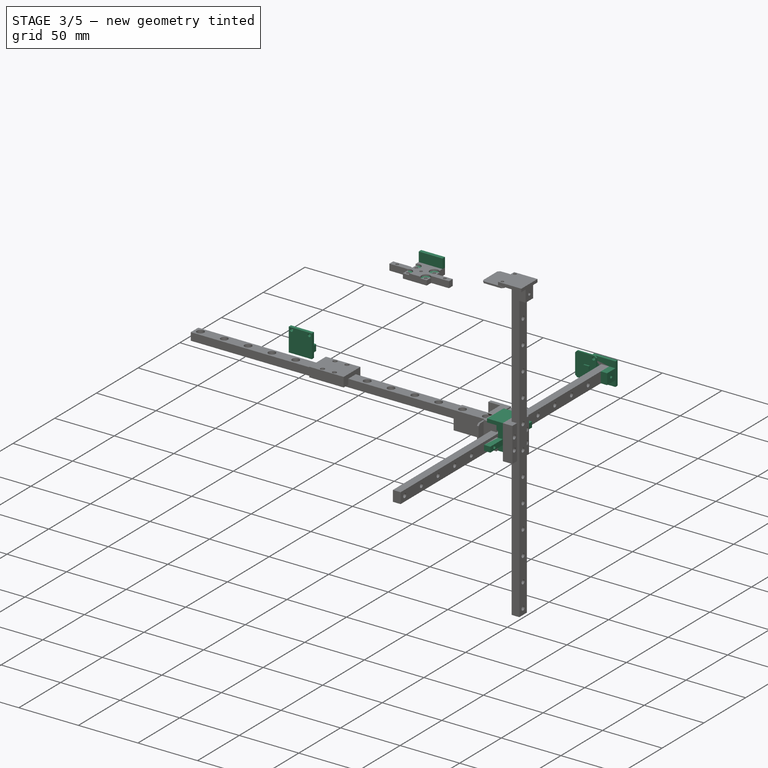
[diagram: stage 3 of 5 — iso view after this stage's code; geometry added in this stage tinted green]
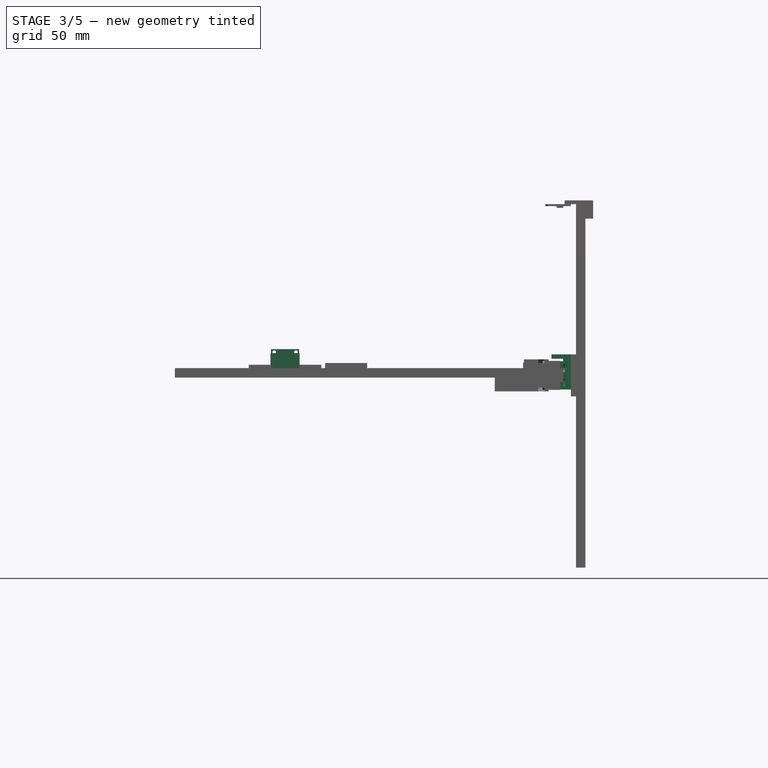
[diagram: stage 3 of 5 — front view after this stage's code; geometry added in this stage tinted green]
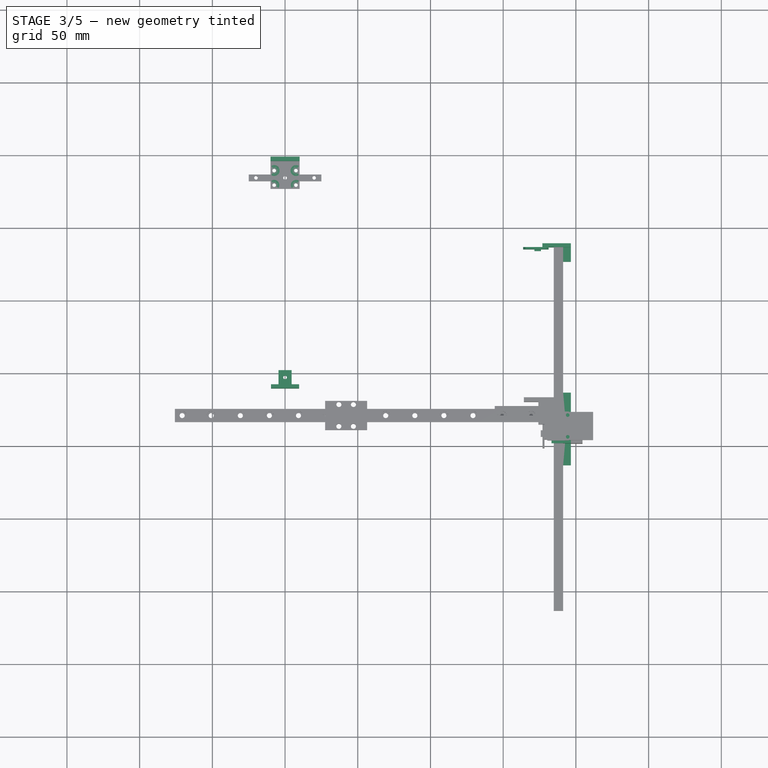
[diagram: stage 3 of 5 — top view after this stage's code; geometry added in this stage tinted green]
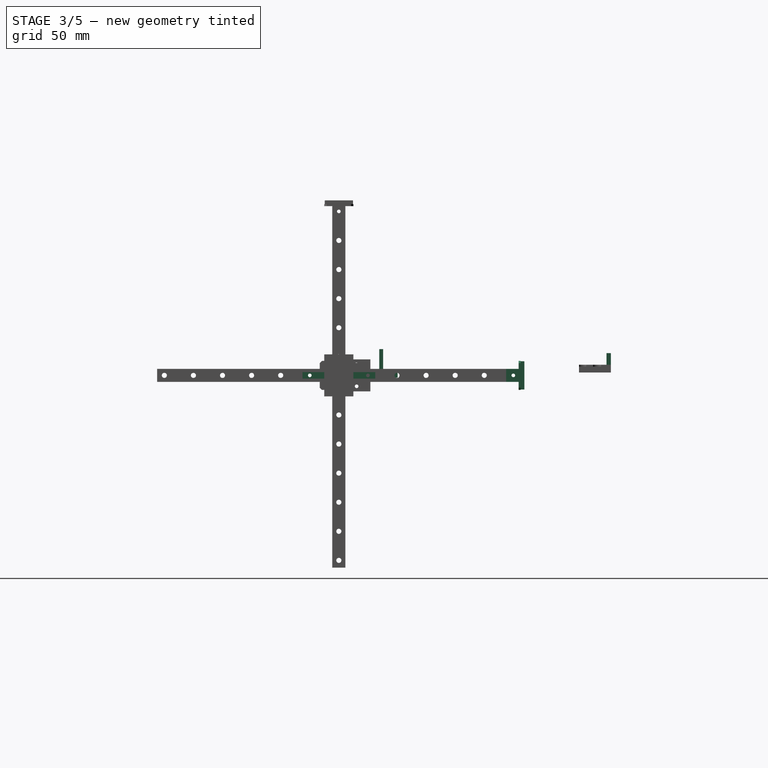
[diagram: stage 3 of 5 — right view after this stage's code; geometry added in this stage tinted green]
FEATURE [Sketcher::SketchObject] Sketch028
  ExternalGeometry = -> [Pad016]
  FullyConstrained = true
  MapMode = 5
  Placement = pos=(0,0,8.8) rot=(0,0,1;0rad)
  Support = -> [Pad016]
  sketch-geometry (4):
    g0: Circle CenterX=-7.5 CenterY=127.225 CenterZ=0 NormalX=0 NormalY=0 NormalZ=1 AngleXU=0 Radius=3.53553
    g1: Circle CenterX=7.5 CenterY=127.225 CenterZ=0 NormalX=0 NormalY=0 NormalZ=1 AngleXU=0 Radius=3.53553
    g2: Circle CenterX=-7.5 CenterY=137.225 CenterZ=0 NormalX=0 NormalY=0 NormalZ=1 AngleXU=0 Radius=3.71652
    g3: Circle CenterX=7.5 CenterY=137.225 CenterZ=0 NormalX=0 NormalY=0 NormalZ=1 AngleXU=0 Radius=3.71652
  constraints (8):
    c: PointOnObject(g-7,g0)
    c: Coincident(g0,g-6)
    c: Coincident(g1,g-5)
    c: PointOnObject(g-7,g1)
    c: PointOnObject(g-8,g2)
    c: Coincident(g3,g-4)
    c: Coincident(g2,g-3)
    c: PointOnObject(g-9,g3)
FEATURE [PartDesign::Pocket] Pocket008
  BaseFeature = -> Pad016
  Direction = (1,1,1)
  Length = 1.3
  Length2 = 5
  Placement = pos=(0,0,8) rot=(0,0,1;0rad)
  Profile = -> Sketch028
  Type = 0
  expr: Length = <<Rail>>.RSLR - <<Rail>>.RSLH
FEATURE [Part::FeaturePython] YZConnector_001  # a2plus imported part (geometry in sourceFile) (typed FeaturePython)
  Placement = pos=(200.035,-40.425,-130.725) rot=(0.57735,-0.57735,-0.57735;2.0944rad)
  a2p_Version = V0.1
  fixedPosition = false
  localSourceObject = Body009
  objectType = a2pPart
  sourceFile = converted
  subassemblyImport = false
  timeLastImport = 1.66263e+09
  updateColors = true
FEATURE [Sketcher::SketchObject] Sketch029
  FullyConstrained = true
  MapMode = 5
  Support = -> [XY_Plane010]
  expr: Constraints[10] = <<Screws>>.B4
  expr: Constraints[12] = <<Rail>>.RFSO
  expr: Constraints[13] = <<Rail>>.RFSO * 2
  expr: Constraints[24] = <<Screws>>.D6 - <<Sensor>>.Depth
  expr: Constraints[26] = <<Sensor>>.ScrewDiameter
  expr: Constraints[31] = <<Sensor>>.ScrewCenterDistance
  expr: Constraints[32] = <<Sensor>>.ScrewToEdgeDistance
  expr: Constraints[7] = <<Rail>>.RW
  sketch-geometry (16):
    g0: LineSegment StartX=-4.5 StartY=0 StartZ=0 EndX=4.5 EndY=0 EndZ=0
    g1: LineSegment StartX=4.5 StartY=0 StartZ=0 EndX=4.5 EndY=-10 EndZ=0
    g2: LineSegment StartX=4.5 StartY=-10 StartZ=0 EndX=-4.5 EndY=-10 EndZ=0
    g3: LineSegment StartX=-4.5 StartY=-10 StartZ=0 EndX=-4.5 EndY=0 EndZ=0
    g4: Circle CenterX=0 CenterY=-5 CenterZ=0 NormalX=0 NormalY=0 NormalZ=1 AngleXU=0 Radius=1.25
    g5: GeomPoint X=4.5 Y=-10 Z=0
    g6: LineSegment StartX=-9.7 StartY=-10 StartZ=0 EndX=9.7 EndY=-10 EndZ=0
    g7: LineSegment StartX=9.7 StartY=-10 StartZ=0 EndX=9.7 EndY=-12.6 EndZ=0
    g8: LineSegment StartX=9.7 StartY=-12.6 StartZ=0 EndX=-9.7 EndY=-12.6 EndZ=0
    g9: LineSegment StartX=-9.7 StartY=-12.6 StartZ=0 EndX=-9.7 EndY=-10 EndZ=0
    g10: LineSegment StartX=6.2 StartY=-12.6 StartZ=0 EndX=8.8 EndY=-12.6 EndZ=0
    g11: GeomPoint X=7.5 Y=-12.6 Z=0
    g12: LineSegment StartX=-8.8 StartY=-12.6 StartZ=0 EndX=-6.2 EndY=-12.6 EndZ=0
    g13: GeomPoint X=-7.5 Y=-12.6 Z=0
    g14: LineSegment StartX=9.7 StartY=-10 StartZ=0 EndX=4.5 EndY=-10 EndZ=0
    g15: LineSegment StartX=-4.5 StartY=-10 StartZ=0 EndX=-9.7 EndY=-10 EndZ=0
  constraints (40):
    c: Coincident(g0,g1)
    c: Coincident(g1,g2)
    c: Coincident(g2,g3)
    c: Coincident(g3,g0)
    c: Horizontal(g2)
    c: Vertical(g1)
    c: Vertical(g3)
    c: DistanceX(g0,g0) = 9
    c: PointOnObject(g4,g-2)
    c: Symmetric(g0,g0,g-2)
    c: Diameter(g4) = 2.5
    c: PointOnObject(g0,g-1)
    c: DistanceY(g4,g0) = 5
    c: DistanceY(g5,g0) = 10
    c: Coincident(g1,g5)
    c: Coincident(g6,g7)
    c: Coincident(g7,g8)
    c: Coincident(g8,g9)
    c: Coincident(g9,g6)
    c: Horizontal(g8)
    c: Vertical(g7)
    c: Vertical(g9)
    c: PointOnObject(g1,g6)
    c: Symmetric(g6,g6,g-2)
    c: DistanceY(g7,g7) = 2.6
    c: Horizontal(g10)
    c: DistanceX(g10,g10) = 2.6
    c: Symmetric(g10,g10,g11)
    c: Horizontal(g12)
    c: Equal(g10,g12) = 2.6
    c: Symmetric(g12,g12,g13)
    c: DistanceX(g13,g11) = 15
    c: DistanceX(g10,g7) = 0.9
    c: PointOnObject(g11,g8)
    c: Symmetric(g13,g11,g-2)
    c: Coincident(g14,g7)
    c: Coincident(g14,g1)
    c: Coincident(g15,g3)
    c: Coincident(g15,g9)
    c: DistanceY(g9,g9) = 2.6  'Thickness'
FEATURE [PartDesign::Pad] Pad017
  Direction = (0,0,1)
  Length = 5.3
  Length2 = 10
  Profile = -> Sketch029
  Type = 0
  expr: Length = <<Rail>>.RSLR
FEATURE [Sketcher::SketchObject] Sketch030
  ExternalGeometry = -> [Pad017]
  FullyConstrained = true
  MapMode = 5
  Placement = pos=(0,0,5.3) rot=(0,0,1;0rad)
  Support = -> [Pad017]
  sketch-geometry (4):
    g0: LineSegment StartX=-9.7 StartY=-12.6 StartZ=0 EndX=9.7 EndY=-12.6 EndZ=0
    g1: LineSegment StartX=9.7 StartY=-12.6 StartZ=0 EndX=9.7 EndY=-10 EndZ=0
    g2: LineSegment StartX=9.7 StartY=-10 StartZ=0 EndX=-9.7 EndY=-10 EndZ=0
    g3: LineSegment StartX=-9.7 StartY=-10 StartZ=0 EndX=-9.7 EndY=-12.6 EndZ=0
  constraints (10):
    c: Coincident(g0,g1)
    c: Coincident(g1,g2)
    c: Coincident(g2,g3)
    c: Coincident(g3,g0)
    c: Horizontal(g0)
    c: Horizontal(g2)
    c: Vertical(g1)
    c: Vertical(g3)
    c: Coincident(g0,g-3)
    c: Coincident(g1,g-4)
FEATURE [PartDesign::Pad] Pad018
  BaseFeature = -> Pad017
  Direction = (0,0,1)
  Length = 14.3
  Length2 = 10
  Profile = -> Sketch030
  Type = 0
  expr: Length = <<Rail>>.RB2HB + <<Rail>>.HH + 2 * <<Sensor>>.ScrewToEdgeDistance + <<Screws>>.B4
FEATURE [Sketcher::SketchObject] Sketch031
  ExternalGeometry = -> [Pad018]
  FullyConstrained = true
  MapMode = 5
  Placement = pos=(0,-10,0) rot=(0,0.707107,0.707107;3.14159rad)
  Support = -> [Pad018]
  expr: Constraints[0] = <<Sensor>>.ScrewCenterDistance
  expr: Constraints[1] = <<Screws>>.B4
  expr: Constraints[2] = <<Screws>>.B4
  expr: Constraints[9] = <<Sensor>>.ScrewToEdgeDistance
  sketch-geometry (4):
    g0: Circle CenterX=-7.5 CenterY=17.45 CenterZ=0 NormalX=0 NormalY=0 NormalZ=1 AngleXU=0 Radius=1.25
    g1: Circle CenterX=7.5 CenterY=17.45 CenterZ=0 NormalX=0 NormalY=0 NormalZ=1 AngleXU=0 Radius=1.25
    g2: GeomPoint X=7.5 Y=18.7 Z=0
    g3: LineSegment StartX=7.5 StartY=17.45 StartZ=0 EndX=7.5 EndY=19.6 EndZ=0
  constraints (10):
    c: DistanceX(g0,g1) = 15
    c: Diameter(g1) = 2.5
    c: Diameter(g0) = 2.5
    c: Symmetric(g0,g1,g-2)
    c: PointOnObject(g2,g1)
    c: Coincident(g3,g1)
    c: PointOnObject(g3,g-3)
    c: Perpendicular(g-3,g3)
    c: PointOnObject(g2,g3)
    c: DistanceY(g2,g3) = 0.9
FEATURE [PartDesign::Pocket] Pocket009
  BaseFeature = -> Pad018
  Direction = (1,1,1)
  Length = 2.6
  Length2 = 5
  Profile = -> Sketch031
  Type = 0
  expr: Length = Sketch029.Constraints.Thickness
FEATURE [PartDesign::Body] Body010  label="Y Sensor Holder"
  Group = -> [Sketch029,Pad017,Sketch030,Pad018,Sketch031,Pocket009]
  Origin = -> Origin010
  Tip = -> Pocket009
FEATURE [Part::FeaturePython] Y_Sensor_Holder_001  label="Y Sensor Holder_001"  # a2plus imported part (geometry in sourceFile) (typed FeaturePython)
  Placement = pos=(196.535,74.575,1.50001) rot=(-0.707107,0,0.707107;3.14159rad)
  a2p_Version = V0.1
  fixedPosition = false
  localSourceObject = Body010
  objectType = a2pPart
  sourceFile = converted
  subassemblyImport = false
  timeLastImport = 1.66263e+09
  updateColors = true
FEATURE [Part::FeaturePython] Sensor001_001  # a2plus imported part (geometry in sourceFile) (typed FeaturePython)
  Placement = pos=(172.485,84.575,1.50001) rot=(0,1,0;1.5708rad)
  a2p_Version = V0.1
  fixedPosition = false
  localSourceObject = Body007
  objectType = a2pPart
  sourceFile = converted
  subassemblyImport = false
  timeLastImport = 1.66263e+09
  updateColors = true
FEATURE [App::FeaturePython] circularEdge_016  label="circularEdge_016__Sensor001_001"  # a2plus constraint (typed FeaturePython)
  Object1 = Y_Sensor_Holder_001
  Object2 = Sensor001_001
  ParentTreeObject = -> Y_Sensor_Holder_001
  SubElement1 = Edge26
  SubElement2 = Edge17
  Suppressed = false
  Type = circularEdge
  directionConstraint = 0
  lockRotation = false
  offset = 0
FEATURE [App::FeaturePython] circularEdge_016_mirror  label="circularEdge_016__Y Sensor Holder_001"  # a2plus constraint (typed FeaturePython)
  Object1 = Y_Sensor_Holder_001
  Object2 = Sensor001_001
  ParentTreeObject = -> Sensor001_001
  SubElement1 = Edge26
  SubElement2 = Edge17
  Suppressed = false
  Type = circularEdge
  directionConstraint = 0
  lockRotation = false
  offset = 0
FEATURE [App::FeaturePython] circularEdge_017  label="circularEdge_017__Y Sensor Holder_001"  # a2plus constraint (typed FeaturePython)
  Object1 = Sensor001_001
  Object2 = Y_Sensor_Holder_001
  ParentTreeObject = -> Sensor001_001
  SubElement1 = Edge16
  SubElement2 = Edge27
  Suppressed = false
  Type = circularEdge
  directionConstraint = 0
  lockRotation = false
  offset = 0
FEATURE [App::FeaturePython] circularEdge_017_mirror  label="circularEdge_017__Sensor001_001"  # a2plus constraint (typed FeaturePython)
  Object1 = Sensor001_001
  Object2 = Y_Sensor_Holder_001
  ParentTreeObject = -> Y_Sensor_Holder_001
  SubElement1 = Edge16
  SubElement2 = Edge27
  Suppressed = false
  Type = circularEdge
  directionConstraint = 0
  lockRotation = false
  offset = 0
FEATURE [App::FeaturePython] circularEdge_015  label="circularEdge_015__ProtoRail_002"  # a2plus constraint (typed FeaturePython)
  Object1 = Y_Sensor_Holder_001
  Object2 = ProtoRail_002
  ParentTreeObject = -> Y_Sensor_Holder_001
  SubElement1 = Edge19
  SubElement2 = Edge39
  Suppressed = false
  Type = circularEdge
  directionConstraint = 0
  lockRotation = false
  offset = 0
FEATURE [App::FeaturePython] circularEdge_015_mirror  label="circularEdge_015__Y Sensor Holder_001"  # a2plus constraint (typed FeaturePython)
  Object1 = Y_Sensor_Holder_001
  Object2 = ProtoRail_002
  ParentTreeObject = -> ProtoRail_002
  SubElement1 = Edge19
  SubElement2 = Edge39
  Suppressed = false
  Type = circularEdge
  directionConstraint = 0
  lockRotation = false
  offset = 0
FEATURE [App::FeaturePython] planesParallel_001  label="planesParallel_001__ProtoRail_002"  # a2plus constraint (typed FeaturePython)
  Object1 = Y_Sensor_Holder_001
  Object2 = ProtoRail_002
  ParentTreeObject = -> Y_Sensor_Holder_001
  SubElement1 = Face7
  SubElement2 = Face10
  Suppressed = false
  Type = planesParallel
  directionConstraint = 1
FEATURE [App::FeaturePython] planesParallel_001_mirror  label="planesParallel_001__Y Sensor Holder_001"  # a2plus constraint (typed FeaturePython)
  Object1 = Y_Sensor_Holder_001
  Object2 = ProtoRail_002
  ParentTreeObject = -> ProtoRail_002
  SubElement1 = Face7
  SubElement2 = Face10
  Suppressed = false
  Type = planesParallel
  directionConstraint = 1
FEATURE [App::FeaturePython] circularEdge_011  label="circularEdge_011__ProtoRail_003"  # a2plus constraint (typed FeaturePython)
  Object1 = YZConnector_001
  Object2 = ProtoRail_003
  ParentTreeObject = -> YZConnector_001
  SubElement1 = Edge22
  SubElement2 = Edge125
  Suppressed = false
  Type = circularEdge
  directionConstraint = 0
  lockRotation = false
  offset = 0
FEATURE [App::FeaturePython] circularEdge_011_mirror  label="circularEdge_011__YZConnector_001"  # a2plus constraint (typed FeaturePython)
  Object1 = YZConnector_001
  Object2 = ProtoRail_003
  ParentTreeObject = -> ProtoRail_003
  SubElement1 = Edge22
  SubElement2 = Edge125
  Suppressed = false
  Type = circularEdge
  directionConstraint = 0
  lockRotation = false
  offset = 0
FEATURE [App::FeaturePython] circularEdge_012  label="circularEdge_012__ProtoRail_003"  # a2plus constraint (typed FeaturePython)
  Object1 = YZConnector_001
  Object2 = ProtoRail_003
  ParentTreeObject = -> YZConnector_001
  SubElement1 = Edge28
  SubElement2 = Edge128
  Suppressed = false
  Type = circularEdge
  directionConstraint = 0
  lockRotation = false
  offset = 0
FEATURE [App::FeaturePython] circularEdge_012_mirror  label="circularEdge_012__YZConnector_001"  # a2plus constraint (typed FeaturePython)
  Object1 = YZConnector_001
  Object2 = ProtoRail_003
  ParentTreeObject = -> ProtoRail_003
  SubElement1 = Edge28
  SubElement2 = Edge128
  Suppressed = false
  Type = circularEdge
  directionConstraint = 0
  lockRotation = false
  offset = 0
FEATURE [App::FeaturePython] circularEdge_009  label="circularEdge_009__ProtoRail_002"  # a2plus constraint (typed FeaturePython)
  Object1 = YZConnector_001
  Object2 = ProtoRail_002
  ParentTreeObject = -> YZConnector_001
  SubElement1 = Edge53
  SubElement2 = Edge32
  Suppressed = false
  Type = circularEdge
  directionConstraint = 0
  lockRotation = false
  offset = 0
FEATURE [App::FeaturePython] circularEdge_009_mirror  label="circularEdge_009__YZConnector_001"  # a2plus constraint (typed FeaturePython)
  Object1 = YZConnector_001
  Object2 = ProtoRail_002
  ParentTreeObject = -> ProtoRail_002
  SubElement1 = Edge53
  SubElement2 = Edge32
  Suppressed = false
  Type = circularEdge
  directionConstraint = 0
  lockRotation = false
  offset = 0
FEATURE [App::FeaturePython] circularEdge_010  label="circularEdge_010__ProtoRail_002"  # a2plus constraint (typed FeaturePython)
  Object1 = YZConnector_001
  Object2 = ProtoRail_002
  ParentTreeObject = -> YZConnector_001
  SubElement1 = Edge55
  SubElement2 = Edge34
  Suppressed = false
  Type = circularEdge
  directionConstraint = 0
  lockRotation = false
  offset = 0
FEATURE [App::FeaturePython] circularEdge_010_mirror  label="circularEdge_010__YZConnector_001"  # a2plus constraint (typed FeaturePython)
  Object1 = YZConnector_001
  Object2 = ProtoRail_002
  ParentTreeObject = -> ProtoRail_002
  SubElement1 = Edge55
  SubElement2 = Edge34
  Suppressed = false
  Type = circularEdge
  directionConstraint = 0
  lockRotation = false
  offset = 0
FEATURE [Sketcher::SketchObject] Sketch032
  ExternalGeometry = -> [Pocket008]
  FullyConstrained = true
  MapMode = 5
  Placement = pos=(0,0,8.8) rot=(0,0,1;0rad)
  Support = -> [Pocket008]
  sketch-geometry (4):
    g0: LineSegment StartX=-10 StartY=146.675 StartZ=0 EndX=10 EndY=146.675 EndZ=0
    g1: LineSegment StartX=10 StartY=146.675 StartZ=0 EndX=10 EndY=143.675 EndZ=0
    g2: LineSegment StartX=10 StartY=143.675 StartZ=0 EndX=-10 EndY=143.675 EndZ=0
    g3: LineSegment StartX=-10 StartY=143.675 StartZ=0 EndX=-10 EndY=146.675 EndZ=0
  constraints (10):
    c: Coincident(g0,g1)
    c: Coincident(g1,g2)
    c: Coincident(g2,g3)
    c: Coincident(g3,g0)
    c: Horizontal(g2)
    c: Vertical(g1)
    c: Vertical(g3)
    c: Coincident(g0,g-3)
    c: Coincident(g0,g-3)
    c: DistanceY(g3,g3) = 3
FEATURE [PartDesign::Pad] Pad019
  BaseFeature = -> Pocket008
  Direction = (0,0,1)
  Length = 8
  Length2 = 10
  Placement = pos=(0,0,8) rot=(0,0,1;0rad)
  Profile = -> Sketch032
  Type = 0
  expr: Length = <<Rail>>.HH
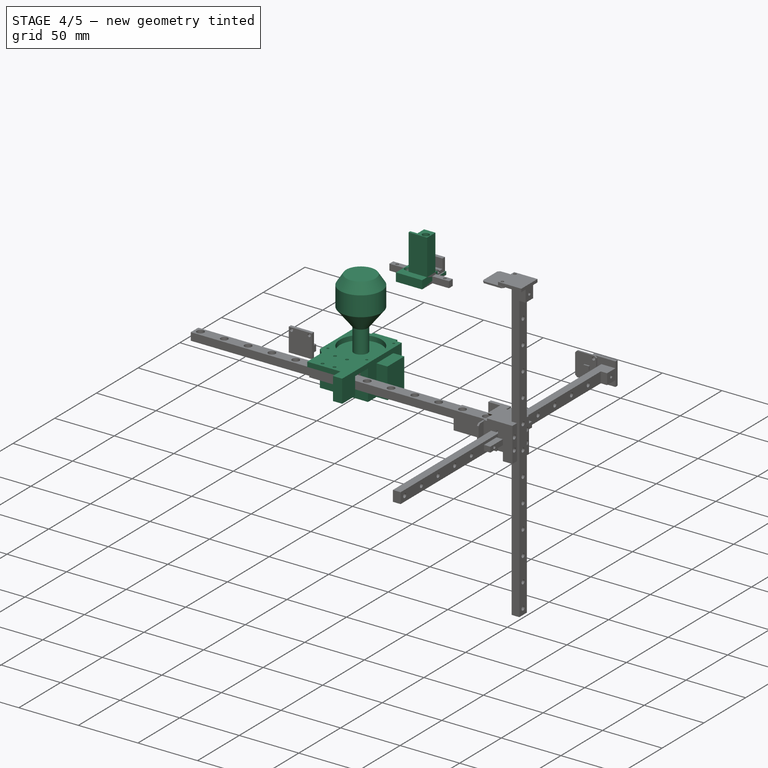
[diagram: stage 4 of 5 — iso view after this stage's code; geometry added in this stage tinted green]
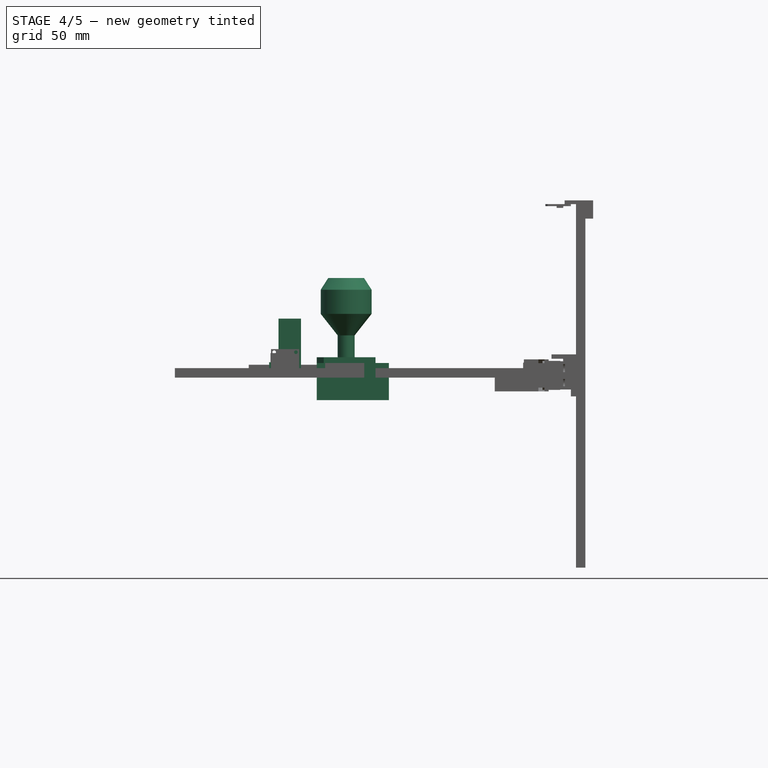
[diagram: stage 4 of 5 — front view after this stage's code; geometry added in this stage tinted green]
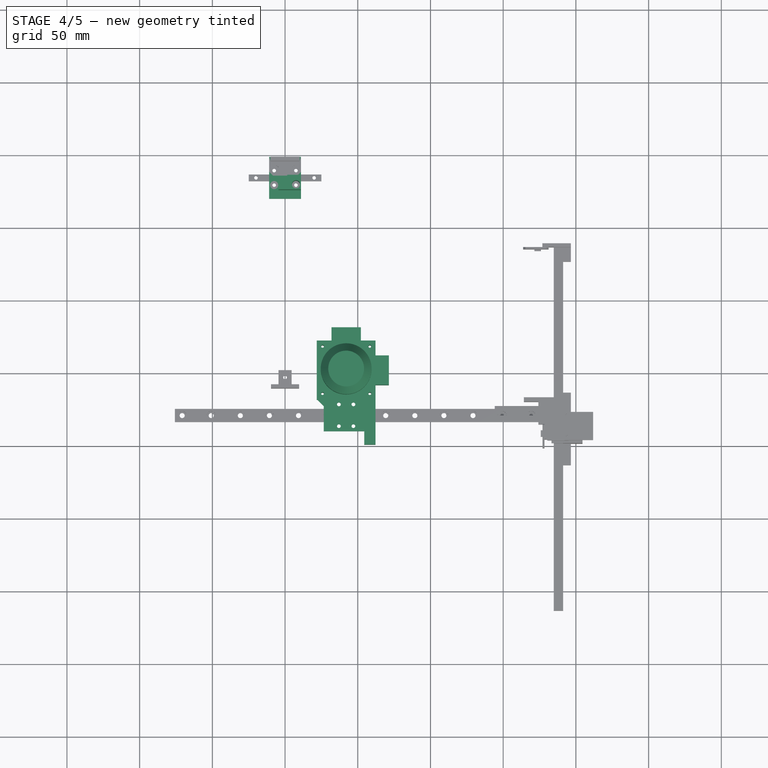
[diagram: stage 4 of 5 — top view after this stage's code; geometry added in this stage tinted green]
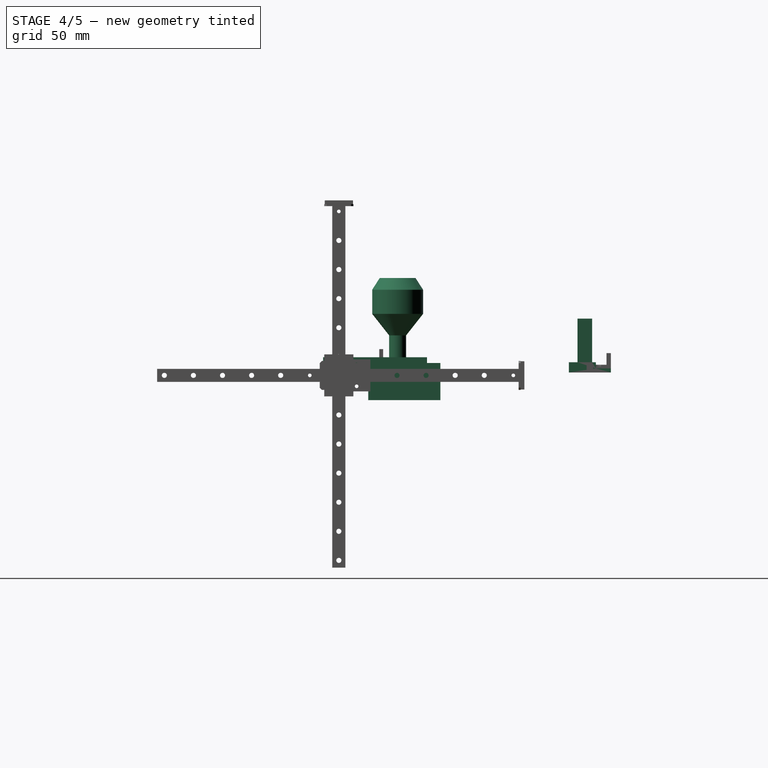
[diagram: stage 4 of 5 — right view after this stage's code; geometry added in this stage tinted green]
FEATURE [PartDesign::Body] Body007  label="Sensor001"
  Group = -> [Sketch017,Pad008,Sketch018,Pad009]
  Origin = -> Origin007
  Tip = -> Pad009
FEATURE [Spreadsheet::Sheet] Spreadsheet009  label="Screws"
  cells = A1='Screw Name; B1='M3x8; C1='M3x6; D1='M3x4; A2='Body Diameter Without Grooves; B2=2; C2=2; D2=2; A3='Body Diameter With Grooves; B3=2.6; C3=2.6; D3=2.6; A4='Body Diameter Gripping; B4==B3 - 0.1; C4==C3 - 0.1; D4==D3 - 0.1; A5='Body Diameter Sliding; B5==B3 + 0.1; C5==C3 + 0.1; D5==D3 + 0.1; A6='Body Height; B6==10.8 - B9; C6=6; D6=4; A7='Head Diameter; B7=5.4; C7=5.4; D7=5.4; A8='Head Diameter Sliding; B8==B7 + 0.2; C8==C7 + 0.2; D8==D7 + 0.2; A9='Head Height; B9=2.8; C9=2.8; D9=2.8
FEATURE [PartDesign::Pad] Pad010
  Direction = (0,0,1)
  Length = 7
  Length2 = 10
  Placement = pos=(0,0,8) rot=(0,0,1;0rad)
  Profile = -> Sketch016
  Type = 0
  expr: Length = <<XYC>>.Height
FEATURE [Spreadsheet::Sheet] Spreadsheet010  label="XYC"
  cells = A1='Height; B1(Height)==<<Screws>>.B9 + <<Rail>>.RSLH + 0.2; A2='Depth; B2(Depth)==<<Rail>>.HW + 2; A3='Width; B3(Width)==<<Rail>>.HL; A5='Sensor Screw Distance; B5(SensorScrewDistance)=6; A6='Number Of Screws For X Axis; B6(NScrewsXAxis)=2; A7='Sensor Extrusion Length; B7(SensorExtrusionLength)=0
FEATURE [App::DocumentObjectGroup] Group  label="Sheets"
  Group = -> [Spreadsheet,Spreadsheet001,Spreadsheet002,Spreadsheet003,Spreadsheet004,Spreadsheet005,Spreadsheet006,Spreadsheet007,Spreadsheet008,Spreadsheet009,Spreadsheet010]
FEATURE [Sketcher::SketchObject] Sketch019
  ExternalGeometry = -> [Pad010]
  FullyConstrained = true
  MapMode = 5
  Placement = pos=(0,0,10.5) rot=(0,0,1;0rad)
  Support = -> [Pad010]
  expr: Constraints[15] = <<Sensor>>.ScrewDiameter + <<Sensor>>.ScrewToEdgeDistance
  expr: Constraints[16] = <<Sensor>>.ScrewDiameter + <<Sensor>>.ScrewToEdgeDistance
  expr: Constraints[17] = <<Sensor>>.ScrewDiameter + <<Sensor>>.ScrewToEdgeDistance
  expr: Constraints[19] = Sketch017.Constraints.ChampherWidthDistance
  expr: Constraints[1] = <<Sensor>>.ScrewDiameter
  sketch-geometry (8):
    g0: Circle CenterX=-7.5 CenterY=137.225 CenterZ=0 NormalX=0 NormalY=0 NormalZ=1 AngleXU=0 Radius=1.3
    g1: LineSegment StartX=-11 StartY=133.725 StartZ=0 EndX=11 EndY=133.725 EndZ=0
    g2: LineSegment StartX=-8.41162 StartY=133.725 StartZ=0 EndX=-11 EndY=136.313 EndZ=0
    g3: LineSegment StartX=-8.41162 StartY=133.725 StartZ=0 EndX=8.41162 EndY=133.725 EndZ=0
    g4: LineSegment StartX=8.41162 StartY=133.725 StartZ=0 EndX=11 EndY=136.313 EndZ=0
    g5: LineSegment StartX=11 StartY=136.313 StartZ=0 EndX=11 EndY=146.675 EndZ=0
    g6: LineSegment StartX=-11 StartY=136.313 StartZ=0 EndX=-11 EndY=146.675 EndZ=0
    g7: LineSegment StartX=-11 StartY=146.675 StartZ=0 EndX=11 EndY=146.675 EndZ=0
  constraints (24):
    c: Coincident(g0,g-3)
    c: Diameter(g0) = 2.6
    c: PointOnObject(g1,g-8)
    c: PointOnObject(g1,g-7)
    c: Horizontal(g1)
    c: PointOnObject(g2,g1)
    c: Coincident(g3,g2)
    c: PointOnObject(g3,g1)
    c: Coincident(g4,g3)
    c: Coincident(g5,g4)
    c: Vertical(g5)
    c: Coincident(g6,g2)
    c: Vertical(g6)
    c: Angle(g1,g2) = 2.35619
    c: Angle(g4,g1) = 2.35619
    c: DistanceY(g3,g-4) = 3.5
    c: DistanceX(g-4,g4) = 3.5
    c: DistanceX(g2,g0) = 3.5
    c: Horizontal(g4,g2)
    c: DistanceX(g3,g3) = 16.8232
    c: Horizontal(g6,g5)
    c: Horizontal(g6,g-8)
    c: Coincident(g7,g6)
    c: Coincident(g7,g5)
FEATURE [PartDesign::Pocket] Pocket005
  BaseFeature = -> Pad010
  Direction = (1,1,1)
  Length = 4.2
  Length2 = 5
  Placement = pos=(0,0,8) rot=(0,0,1;0rad)
  Profile = -> Sketch019
  Type = 0
  expr: Length = <<Sensor>>.Depth + Spreadsheet009.B9
FEATURE [Sketcher::SketchObject] Sketch020
  ExternalGeometry = -> [Pocket005]
  FullyConstrained = true
  MapMode = 5
  Placement = pos=(0,0,10.5) rot=(0,0,1;0rad)
  Support = -> [Pocket005]
  expr: Constraints[3] = Spreadsheet009.B8
  sketch-geometry (2):
    g0: Circle CenterX=-7.5 CenterY=127.225 CenterZ=0 NormalX=0 NormalY=0 NormalZ=1 AngleXU=0 Radius=2.8
    g1: Circle CenterX=7.5 CenterY=127.225 CenterZ=0 NormalX=0 NormalY=0 NormalZ=1 AngleXU=0 Radius=2.8
  constraints (4):
    c: Coincident(g0,g-4)
    c: Coincident(g1,g-3)
    c: Equal(g1,g0)
    c: Diameter(g1) = 5.6
FEATURE [PartDesign::Pocket] Pocket006
  BaseFeature = -> Pocket005
  Direction = (1,1,1)
  Length = 2.8
  Length2 = 5
  Placement = pos=(0,0,8) rot=(0,0,1;0rad)
  Profile = -> Sketch020
  Type = 0
  expr: Length = Spreadsheet009.B9
FEATURE [Sketcher::SketchObject] Sketch021
  ExternalGeometry = -> [Pocket006]
  FullyConstrained = true
  MapMode = 5
  Placement = pos=(0,0,10.5) rot=(0,0,1;0rad)
  Support = -> [Pocket006]
  expr: Constraints[18] = Spreadsheet009.B5 + 0.3
  expr: Constraints[21] = <<Rail>>.RSLH + 2
  expr: Constraints[23] = <<Screws>>.B8
  expr: Constraints[8] = <<Rail>>.RW
  expr: Constraints[9] = <<Rail>>.RH
  sketch-geometry (18):
    g0: LineSegment StartX=-5 StartY=134.725 StartZ=0 EndX=1.5 EndY=134.725 EndZ=0
    g1: LineSegment StartX=1.5 StartY=134.725 StartZ=0 EndX=1.5 EndY=125.725 EndZ=0
    g2: LineSegment StartX=1.5 StartY=125.725 StartZ=0 EndX=-5 EndY=125.725 EndZ=0
    g3: LineSegment StartX=-5 StartY=125.725 StartZ=0 EndX=-5 EndY=134.725 EndZ=0
    g4: LineSegment StartX=1.5 StartY=131.725 StartZ=0 EndX=7.5 EndY=131.725 EndZ=0
    g5: LineSegment StartX=7.5 StartY=131.725 StartZ=0 EndX=7.5 EndY=128.725 EndZ=0
    g6: LineSegment StartX=7.5 StartY=128.725 StartZ=0 EndX=1.5 EndY=128.725 EndZ=0
    g7: LineSegment StartX=1.5 StartY=128.725 StartZ=0 EndX=1.5 EndY=131.725 EndZ=0
    g8: GeomPoint X=1.5 Y=130.225 Z=0
    g9: Circle CenterX=7.5 CenterY=127.225 CenterZ=0 NormalX=0 NormalY=0 NormalZ=1 AngleXU=0 Radius=2.8
    g10: LineSegment StartX=-4.5 StartY=123.725 StartZ=0 EndX=11 EndY=123.725 EndZ=0
    g11: LineSegment StartX=11 StartY=123.725 StartZ=0 EndX=11 EndY=133.725 EndZ=0
    g12: LineSegment StartX=11 StartY=133.725 StartZ=0 EndX=-4.5 EndY=133.725 EndZ=0
    g13: LineSegment StartX=-4.5 StartY=133.725 StartZ=0 EndX=-4.5 EndY=123.725 EndZ=0
    g14: LineSegment StartX=-4.5 StartY=123.725 StartZ=0 EndX=-4.5 EndY=125.725 EndZ=0
    g15: LineSegment StartX=-4.5 StartY=125.725 StartZ=0 EndX=1.5 EndY=125.725 EndZ=0
    g16: LineSegment StartX=1.5 StartY=125.725 StartZ=0 EndX=1.5 EndY=133.725 EndZ=0
    g17: LineSegment StartX=1.5 StartY=133.725 StartZ=0 EndX=11 EndY=133.725 EndZ=0
  constraints (48):
    c: Coincident(g0,g1)
    c: Coincident(g1,g2)
    c: Coincident(g2,g3)
    c: Coincident(g3,g0)
    c: Horizontal(g0)
    c: Horizontal(g2)
    c: Vertical(g1)
    c: Vertical(g3)
    c: DistanceY(g3,g3) = 9
    c: DistanceX(g0,g0) = 6.5
    c: Coincident(g4,g5)
    c: Coincident(g5,g6)
    c: Coincident(g6,g7)
    c: Coincident(g7,g4)
    c: Horizontal(g4)
    c: Horizontal(g6)
    c: Vertical(g5)
    c: Vertical(g7)
    c: DistanceY(g5,g5) = 3
    c: Symmetric(g4,g6,g8)
    c: Symmetric(g0,g1,g8)
    c: DistanceX(g4,g4) = 6
    c: Coincident(g9,g-3)
    c: Diameter(g9) = 5.6
    c: Coincident(g10,g11)
    c: Coincident(g11,g12)
    c: Coincident(g12,g13)
    c: Coincident(g13,g10)
    c: Horizontal(g10)
    c: Horizontal(g12)
    c: Vertical(g11)
    c: Vertical(g13)
    c: DistanceY(g10,g1) = 2
    c: Coincident(g14,g10)
    c: PointOnObject(g14,g2)
    c: PointOnObject(g14,g13)
    c: Coincident(g15,g14)
    c: Coincident(g15,g1)
    c: Coincident(g16,g15)
    c: PointOnObject(g16,g12)
    c: Vertical(g16)
    c: Coincident(g17,g16)
    c: Coincident(g17,g11)
    c: DistanceX(g10,g15) = 6
    c: PointOnObject(g-4,g17)
    c: PointOnObject(g10,g-5)
    c: DistanceY(g16,g0) = 1
    c: Vertical(g9,g5)
FEATURE [PartDesign::Pad] Pad011
  BaseFeature = -> Pocket006
  Direction = (0,0,1)
  Length = 30
  Length2 = 10
  Placement = pos=(0,0,8) rot=(0,0,1;0rad)
  Profile = -> Sketch021
  Type = 0
  expr: Length = 2 * <<Rail>>.RFSO + (<<XYC>>.NScrewsXAxis - 1) * <<Rail>>.RS2SO
FEATURE [Sketcher::SketchObject] Sketch022
  ExternalGeometry = -> [Pad011]
  FullyConstrained = true
  MapMode = 5
  Placement = pos=(1.5,0,8) rot=(0.57735,-0.57735,-0.57735;2.0944rad)
  Support = -> [Pad011]
  expr: Constraints[3] = <<Screws>>.B4
  expr: Constraints[4] = <<Screws>>.B4
  expr: Constraints[5] = <<Rail>>.RS2SO
  expr: Constraints[6] = <<Rail>>.RFSO
  expr: Constraints[9] = <<Rail>>.RW / 2
  sketch-geometry (3):
    g0: LineSegment StartX=-130.225 StartY=4.5 StartZ=0 EndX=-130.225 EndY=2.5 EndZ=0
    g1: Circle CenterX=-130.225 CenterY=27.5 CenterZ=0 NormalX=0 NormalY=0 NormalZ=1 AngleXU=0 Radius=1.25
    g2: Circle CenterX=-130.225 CenterY=7.5 CenterZ=0 NormalX=0 NormalY=0 NormalZ=1 AngleXU=0 Radius=1.25
  constraints (10):
    c: Vertical(g0)
    c: PointOnObject(g1,g0)
    c: PointOnObject(g2,g0)
    c: Diameter(g2) = 2.5
    c: Diameter(g1) = 2.5
    c: DistanceY(g2,g1) = 20
    c: DistanceY(g0,g2) = 5
    c: DistanceY(g0,g0) = 2
    c: Horizontal(g-3,g0)
    c: DistanceX(g0,g-3) = 4.5
FEATURE [PartDesign::Pocket] Pocket007
  BaseFeature = -> Pad011
  Direction = (1,1,1)
  Length = 5.3
  Length2 = 5
  Placement = pos=(0,0,8) rot=(0,0,1;0rad)
  Profile = -> Sketch022
  Type = 0
  expr: Length = <<Rail>>.RSLR
FEATURE [Part::FeaturePython] Joystick_Place_Holder_001  label="Joystick Place Holder_001"  # a2plus imported part (geometry in sourceFile) (typed FeaturePython)
  Placement = pos=(0,0,0) rot=(0,0,1;1.5708rad)
  a2p_Version = V0.1
  fixedPosition = true
  localSourceObject = Body003
  objectType = a2pPart
  sourceFile = converted
  subassemblyImport = false
  timeLastImport = 1.66263e+09
  updateColors = true
FEATURE [Part::FeaturePython] JXConnector_001  # a2plus imported part (geometry in sourceFile) (typed FeaturePython)
  Placement = pos=(-90.215,-31.2,6.5) rot=(0,0,-1;1.5708rad)
  a2p_Version = V0.1
  fixedPosition = false
  localSourceObject = Body008
  objectType = a2pPart
  sourceFile = converted
  subassemblyImport = false
  timeLastImport = 1.66263e+09
  updateColors = true
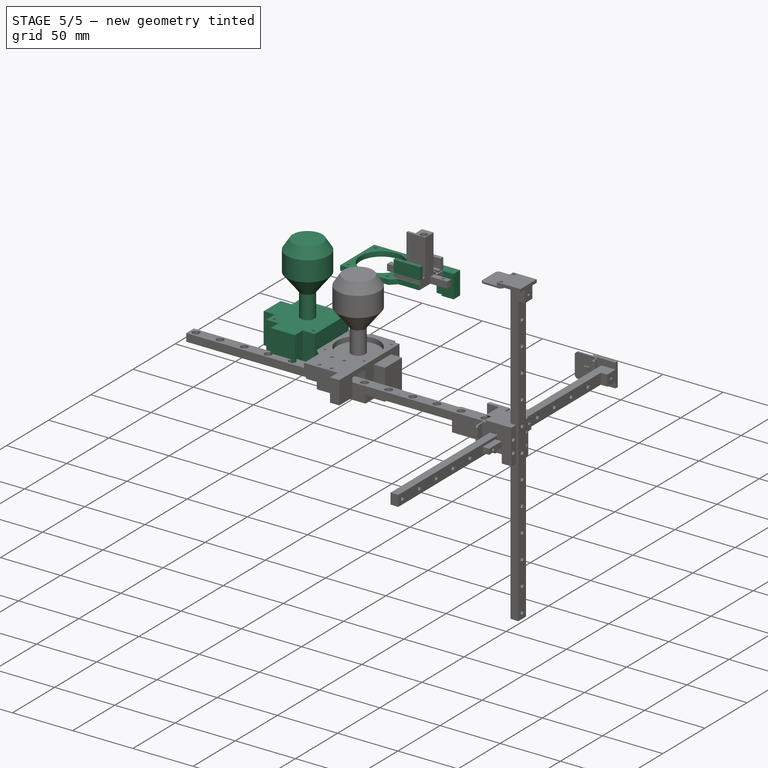
[diagram: stage 5 of 5 — iso view after this stage's code; geometry added in this stage tinted green]
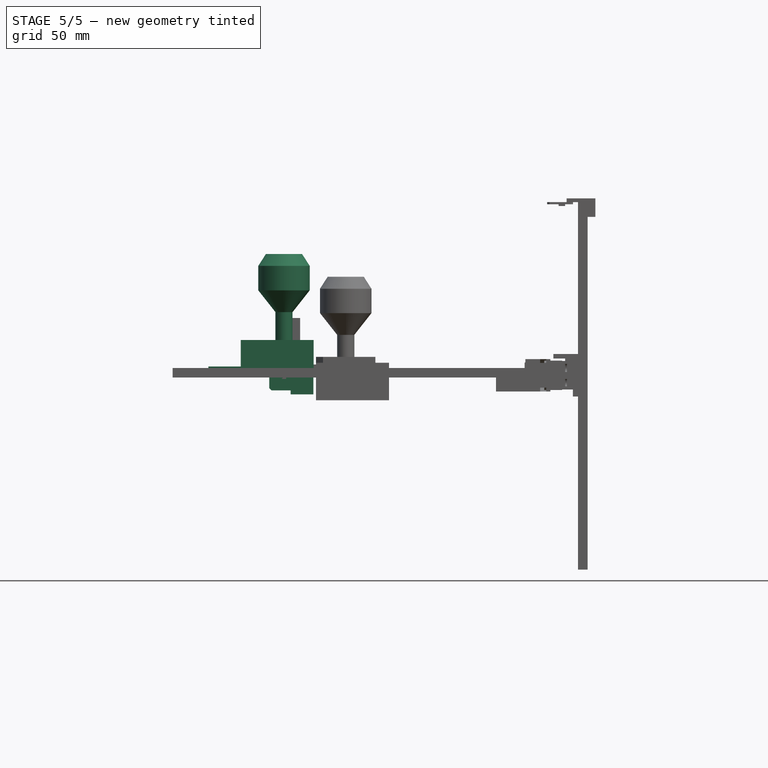
[diagram: stage 5 of 5 — front view after this stage's code; geometry added in this stage tinted green]
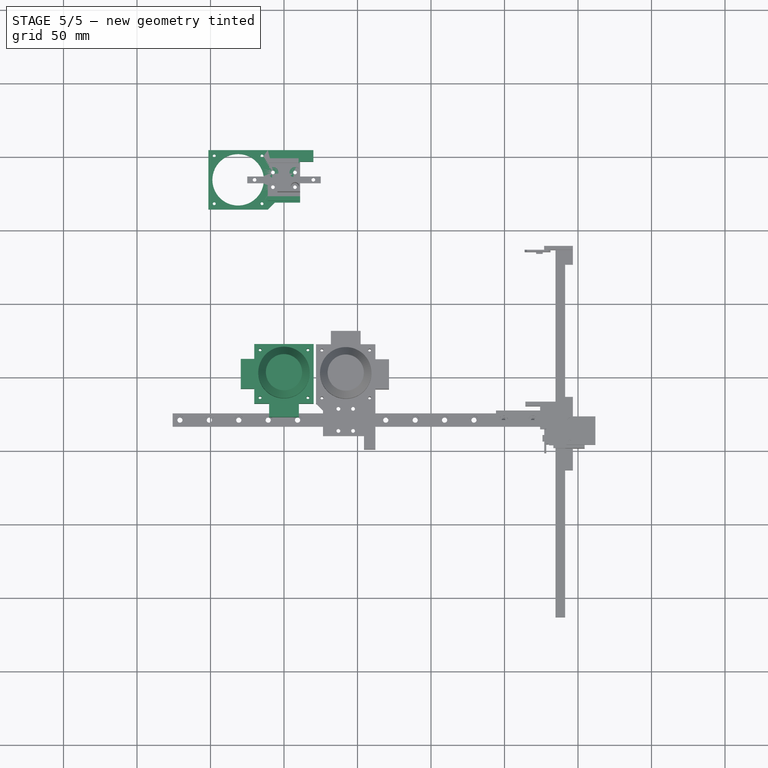
[diagram: stage 5 of 5 — top view after this stage's code; geometry added in this stage tinted green]
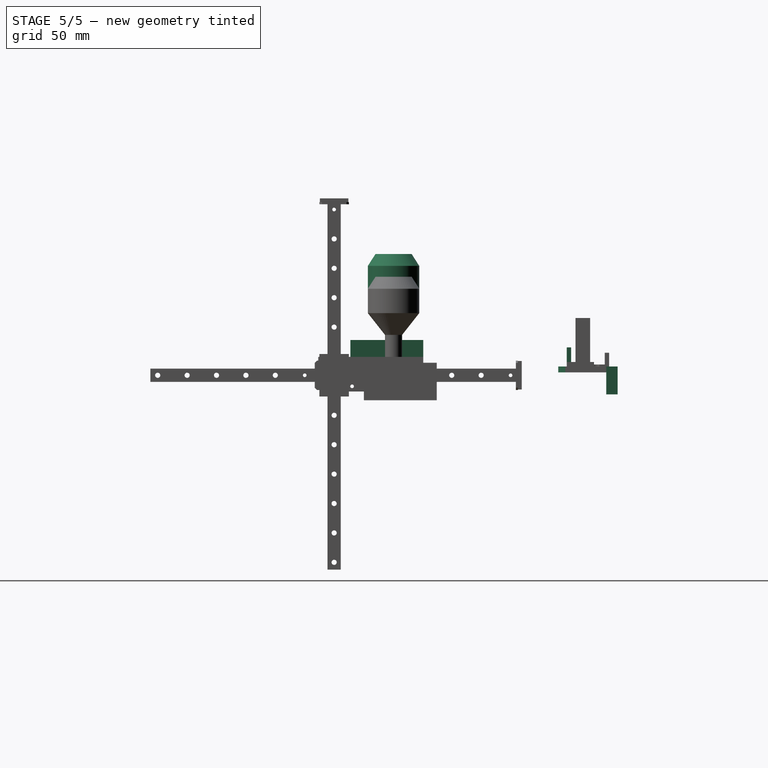
[diagram: stage 5 of 5 — right view after this stage's code; geometry added in this stage tinted green]
FEATURE [PartDesign::Body] Body  label="ProtoRail"
  Group = -> [Sketch,Pad,Sketch001,Pocket,LinearPattern,Sketch002,Pocket001,LinearPattern001,Sketch005,Pad002]
  Origin = -> Origin
  Tip = -> Pad002
FEATURE [Spreadsheet::Sheet] Spreadsheet006  label="XJC"
  cells = A4='Sensor Extrusion Length; B4(SensorExtrusionLength)=15; A5='Screw Width; B5(SW)=32.5; A6='Top Width; B6(TW)==<<Joystick>>.PEW; A7='Top Strength; B7(TS)=5; A9='Depth Strength; B9(DS)=10
FEATURE [Spreadsheet::Sheet] Spreadsheet007  label="General"
  cells = A4='Safety Distances; B4(Safety)=1; A7='Spring Rod:; A8='Diameter; B8(SRD)=5; A9='Holder Min; B9(HM)==D4S * 1.5; A10='Diameter for Sliding; B10(D4S)==SRD * 1.2; A12='In Case of Gummiband; A13='Gummiband Screw Diameter; B13(GSD)=3; A16='M3; A17='Screw Body Effective Diameter; B17(SBED)=2.675; A19='Spring Clamper Depth; B19(SCD)=1; A20='Spring Clamper Length; B20(SCL)=1; A22='Lip For Straightness; B22(LFS)=3; A23='Lip Height; B23(LH)=2
FEATURE [Spreadsheet::Sheet] Spreadsheet008  label="YZC"
FEATURE [Sketcher::SketchObject] Sketch003
  AttachmentOffset = pos=(0,0,0) rot=(0,0,1;1.5708rad)
  FullyConstrained = true
  MapMode = 5
  Placement = pos=(0,0,0) rot=(0,0,1;1.5708rad)
  Support = -> [XY_Plane003]
  expr: Constraints[10] = <<Joystick>>.BW
  expr: Constraints[25] = <<Joystick>>.BW * 0.5
  expr: Constraints[26] = <<Joystick>>.PE
  expr: Constraints[27] = <<Joystick>>.BD * 0.5
  expr: Constraints[28] = <<Joystick>>.PE
  expr: Constraints[50] = <<Joystick>>.SD
  expr: Constraints[51] = <<Joystick>>.SD
  expr: Constraints[53] = <<Joystick>>.SBD / 2
  expr: Constraints[54] = <<Joystick>>.SBD / 2
  expr: Constraints[55] = <<Joystick>>.SBD / 2
  expr: Constraints[56] = <<Joystick>>.SBD / 2
  expr: Constraints[9] = <<Joystick>>.BD
  sketch-geometry (23):
    g0: LineSegment StartX=-20.2 StartY=20.2 StartZ=0 EndX=20.2 EndY=20.2 EndZ=0
    g1: LineSegment StartX=20.2 StartY=20.2 StartZ=0 EndX=20.2 EndY=-20.2 EndZ=0
    g2: LineSegment StartX=20.2 StartY=-20.2 StartZ=0 EndX=-20.2 EndY=-20.2 EndZ=0
    g3: LineSegment StartX=-20.2 StartY=-20.2 StartZ=0 EndX=-20.2 EndY=20.2 EndZ=0
    g4: LineSegment StartX=-10.1 StartY=29.4 StartZ=0 EndX=10.1 EndY=29.4 EndZ=0
    g5: LineSegment StartX=10.1 StartY=29.4 StartZ=0 EndX=10.1 EndY=20.2 EndZ=0
    g6: LineSegment StartX=-10.1 StartY=20.2 StartZ=0 EndX=-10.1 EndY=29.4 EndZ=0
    g7: LineSegment StartX=-29.4 StartY=10.1 StartZ=0 EndX=-20.2 EndY=10.1 EndZ=0
    g8: LineSegment StartX=-20.2 StartY=-10.1 StartZ=0 EndX=-29.4 EndY=-10.1 EndZ=0
    g9: LineSegment StartX=-29.4 StartY=-10.1 StartZ=0 EndX=-29.4 EndY=10.1 EndZ=0
    g10: GeomPoint X=-20.2 Y=-2e-16 Z=0
    g11: LineSegment StartX=-20.2 StartY=20.2 StartZ=0 EndX=-20.2 EndY=10.1 EndZ=0
    g12: LineSegment StartX=-20.2 StartY=20.2 StartZ=0 EndX=-10.1 EndY=20.2 EndZ=0
    g13: LineSegment StartX=-20.2 StartY=-20.2 StartZ=0 EndX=-20.2 EndY=-10.1 EndZ=0
    g14: LineSegment StartX=10.1 StartY=20.2 StartZ=0 EndX=20.2 EndY=20.2 EndZ=0
    g15: Circle CenterX=-16.25 CenterY=16.25 CenterZ=0 NormalX=0 NormalY=0 NormalZ=1 AngleXU=0 Radius=1
    g16: Circle CenterX=16.25 CenterY=16.25 CenterZ=0 NormalX=0 NormalY=0 NormalZ=1 AngleXU=0 Radius=1
    g17: Circle CenterX=16.25 CenterY=-16.25 CenterZ=0 NormalX=0 NormalY=0 NormalZ=1 AngleXU=0 Radius=1
    g18: Circle CenterX=-16.25 CenterY=-16.25 CenterZ=0 NormalX=0 NormalY=0 NormalZ=1 AngleXU=0 Radius=1
    g19: LineSegment StartX=-16.25 StartY=16.25 StartZ=0 EndX=16.25 EndY=16.25 EndZ=0
    g20: LineSegment StartX=16.25 StartY=16.25 StartZ=0 EndX=16.25 EndY=-16.25 EndZ=0
    g21: LineSegment StartX=16.25 StartY=-16.25 StartZ=0 EndX=-16.25 EndY=-16.25 EndZ=0
    g22: LineSegment StartX=-16.25 StartY=-16.25 StartZ=0 EndX=-16.25 EndY=16.25 EndZ=0
  constraints (57):
    c: Coincident(g0,g1)
    c: Coincident(g1,g2)
    c: Coincident(g2,g3)
    c: Coincident(g3,g0)
    c: Horizontal(g0)
    c: Horizontal(g2)
    c: Vertical(g1)
    c: Vertical(g3)
    c: Symmetric(g2,g0,g-1)
    c: DistanceY(g1,g1) = 40.4
    c: DistanceX(g0,g0) = 40.4
    c: Coincident(g4,g5)
    c: Coincident(g6,g4)
    c: Horizontal(g4)
    c: Vertical(g5)
    c: Vertical(g6)
    c: PointOnObject(g5,g0)
    c: Coincident(g8,g9)
    c: Coincident(g9,g7)
    c: Horizontal(g7)
    c: Horizontal(g8)
    c: Vertical(g9)
    c: Symmetric(g0,g2,g10)
    c: Symmetric(g7,g8,g10)
    c: Symmetric(g6,g5,g-2)
    c: DistanceX(g4,g4) = 20.2
    c: DistanceY(g5,g5) = 9.2
    c: DistanceY(g9,g9) = 20.2
    c: DistanceX(g7,g7) = 9.2
    c: Coincident(g11,g0)
    c: Coincident(g11,g7)
    c: Coincident(g12,g11)
    c: Coincident(g13,g2)
    c: Coincident(g13,g8)
    c: Vertical(g13)
    c: Coincident(g12,g6)
    c: Coincident(g14,g5)
    c: Coincident(g14,g1)
    c: Coincident(g19,g20)
    c: Coincident(g20,g21)
    c: Coincident(g21,g22)
    c: Coincident(g22,g19)
    c: Horizontal(g19)
    c: Horizontal(g21)
    c: Vertical(g20)
    c: Vertical(g22)
    c: Coincident(g19,g15)
    c: Coincident(g20,g17)
    c: Coincident(g16,g19)
    c: Coincident(g18,g21)
    c: DistanceY(g22,g22) = 32.5
    c: DistanceX(g19,g19) = 32.5
    c: Symmetric(g16,g18,g-1)
    c: Radius(g18) = 1
    c: Radius(g15) = 1
    c: Radius(g16) = 1
    c: Radius(g17) = 1
FEATURE [PartDesign::Pad] Pad001
  Direction = (0,0,1)
  Length = 25.5
  Length2 = 100
  Profile = -> Sketch003
  Type = 0
  expr: Length = <<Joystick>>.BH
FEATURE [Sketcher::SketchObject] Sketch004
  FullyConstrained = true
  MapMode = 5
  Placement = pos=(0,0,0) rot=(1,0,0;1.5708rad)
  Support = -> [XZ_Plane003]
  expr: .AttachmentOffset.Rotation.Angle = <<Joystick>>.DEMO_ANGLE
  expr: .AttachmentOffset.Rotation.Axis.x = <<Joystick>>.DEMO_ANGLE_X
  expr: .AttachmentOffset.Rotation.Axis.z = <<Joystick>>.DEMO_ANGLE_Z
  expr: Constraints[10] = <<Joystick>>.B2JT
  expr: Constraints[11] = <<Joystick>>.JHH
  expr: Constraints[12] = <<Joystick>>.JD / 2
  expr: Constraints[13] = <<Joystick>>.BH / 2
  expr: Constraints[15] = <<Joystick>>.JD / 6
  sketch-geometry (7):
    g0: LineSegment StartX=0 StartY=84 StartZ=0 EndX=12.31 EndY=84 EndZ=0
    g1: LineSegment StartX=12.31 StartY=84 StartZ=0 EndX=17.5 EndY=75.9 EndZ=0
    g2: LineSegment StartX=17.5 StartY=75.9 StartZ=0 EndX=17.5 EndY=59.3 EndZ=0
    g3: LineSegment StartX=17.5 StartY=59.3 StartZ=0 EndX=5.83333 EndY=44.5 EndZ=0
    g4: LineSegment StartX=5.83333 StartY=44.5 StartZ=0 EndX=5.83333 EndY=12.75 EndZ=0
    g5: LineSegment StartX=5.83333 StartY=12.75 StartZ=0 EndX=0 EndY=12.75 EndZ=0
    g6: LineSegment StartX=0 StartY=84 StartZ=0 EndX=0 EndY=12.75 EndZ=0
  constraints (21):
    c: PointOnObject(g0,g-2)
    c: Coincident(g1,g0)
    c: Coincident(g2,g1)
    c: Vertical(g2)
    c: Coincident(g3,g2)
    c: Coincident(g4,g3)
    c: Coincident(g5,g4)
    c: PointOnObject(g5,g-2)
    c: Horizontal(g5)
    c: Horizontal(g0)
    c: DistanceY(g0) = 84
    c: DistanceY(g3,g0) = 39.5
    c: DistanceX(g1) = 17.5
    c: DistanceY(g5) = 12.75
    c: Vertical(g4)
    c: DistanceX(g5,g5) = 5.83333
    c: DistanceY(g1) = 75.9
    c: DistanceY(g2) = 59.3
    c: DistanceX(g0) = 12.31
    c: Coincident(g6,g0)
    c: Coincident(g6,g5)
FEATURE [PartDesign::Revolution] Revolution
  Angle = 360
  Axis = (0,-2e-16,1)
  Base = (0,0,0)
  BaseFeature = -> Pad001
  Profile = -> Sketch004
  ReferenceAxis = -> Sketch004 [V_Axis]
  Reversed = true
FEATURE [PartDesign::Body] Body003  label="Joystick Place Holder"
  Group = -> [Sketch003,Pad001,Sketch004,Revolution]
  Origin = -> Origin003
  Placement = pos=(0,-42.01,-15.5) rot=(0,0,1;1.5708rad)
  Tip = -> Revolution
  expr: .Placement.Base.z = -10.5 - <<XJC>>.TS
FEATURE [PartDesign::ShapeBinder] ReferencePad007
  Placement = pos=(0,0,8) rot=(0,0,1;0rad)
  Support = -> [Pad002]
  TraceSupport = false
FEATURE [Sketcher::SketchObject] Sketch016
  ExternalGeometry = -> [ReferencePad007]
  FullyConstrained = true
  MapMode = 5
  Placement = pos=(0,0,3.5) rot=(0,0,1;0rad)
  Support = -> [ReferencePad007]
  expr: Constraints[17] = <<XYC>>.Width
  expr: Constraints[18] = <<XYC>>.Depth
  expr: Constraints[4] = <<Screws>>.B4
  expr: Constraints[5] = <<Screws>>.B4
  expr: Constraints[6] = <<Screws>>.B4
  expr: Constraints[7] = <<Screws>>.B4
  sketch-geometry (9):
    g0: Circle CenterX=-7.5 CenterY=137.225 CenterZ=0 NormalX=0 NormalY=0 NormalZ=1 AngleXU=0 Radius=1.25
    g1: Circle CenterX=-7.5 CenterY=127.225 CenterZ=0 NormalX=0 NormalY=0 NormalZ=1 AngleXU=0 Radius=1.25
    g2: Circle CenterX=7.5 CenterY=137.225 CenterZ=0 NormalX=0 NormalY=0 NormalZ=1 AngleXU=0 Radius=1.25
    g3: Circle CenterX=7.5 CenterY=127.225 CenterZ=0 NormalX=0 NormalY=0 NormalZ=1 AngleXU=0 Radius=1.25
    g4: LineSegment StartX=-11 StartY=117.775 StartZ=0 EndX=11 EndY=117.775 EndZ=0
    g5: LineSegment StartX=11 StartY=117.775 StartZ=0 EndX=11 EndY=146.675 EndZ=0
    g6: LineSegment StartX=11 StartY=146.675 StartZ=0 EndX=-11 EndY=146.675 EndZ=0
    g7: LineSegment StartX=-11 StartY=146.675 StartZ=0 EndX=-11 EndY=117.775 EndZ=0
    g8: GeomPoint X=-3.1e-15 Y=132.225 Z=0
  constraints (20):
    c: Coincident(g0,g-8)
    c: Coincident(g1,g-7)
    c: Coincident(g2,g-5)
    c: Coincident(g3,g-6)
    c: Diameter(g3) = 2.5
    c: Diameter(g2) = 2.5
    c: Diameter(g0) = 2.5
    c: Diameter(g1) = 2.5
    c: Coincident(g4,g5)
    c: Coincident(g5,g6)
    c: Coincident(g6,g7)
    c: Coincident(g7,g4)
    c: Horizontal(g4)
    c: Horizontal(g6)
    c: Vertical(g5)
    c: Vertical(g7)
    c: Symmetric(g-3,g-4,g8)
    c: DistanceY(g7,g7) = 28.9
    c: DistanceX(g4,g4) = 22
    c: Symmetric(g4,g6,g8)
FEATURE [Sketcher::SketchObject] Sketch017  label="SensorPlateSketch"
  FullyConstrained = true
  MapMode = 5
  Placement = pos=(0,0,0) rot=(1,0,0;1.5708rad)
  Support = -> [XZ_Plane007]
  expr: Constraints[20] = <<Sensor>>.Height
  expr: Constraints[21] = <<Sensor>>.Width
  expr: Constraints[34] = Spreadsheet001.B11
  expr: Constraints[43] = Spreadsheet001.B13
  expr: Constraints[61] = Spreadsheet001.B13
  expr: Constraints[66] = <<Sensor>>.ScrewCenterDistance
  expr: Constraints[68] = <<Sensor>>.ScrewToEdgeDistance
  sketch-geometry (28):
    g0: LineSegment StartX=-10 StartY=8.8 StartZ=0 EndX=10 EndY=8.8 EndZ=0
    g1: LineSegment StartX=10 StartY=8.8 StartZ=0 EndX=10 EndY=-8.8 EndZ=0
    g2: LineSegment StartX=10 StartY=-8.8 StartZ=0 EndX=-10 EndY=-8.8 EndZ=0
    g3: LineSegment StartX=-10 StartY=-8.8 StartZ=0 EndX=-10 EndY=8.8 EndZ=0
    g4: LineSegment StartX=-8.41162 StartY=8.8 StartZ=0 EndX=-10 EndY=7.21162 EndZ=0
    g5: LineSegment StartX=10 StartY=-7.21162 StartZ=0 EndX=8.41162 EndY=-8.8 EndZ=0
    g6: LineSegment StartX=8.41162 StartY=8.8 StartZ=0 EndX=10 EndY=7.21162 EndZ=0
    g7: LineSegment StartX=-10 StartY=-7.21162 StartZ=0 EndX=-8.41162 EndY=-8.8 EndZ=0
    g8: GeomPoint X=9.20581 Y=8.00581 Z=0
    g9: GeomPoint X=-9.20581 Y=-8.00581 Z=0
    g10: LineSegment StartX=9.20581 StartY=8.00581 StartZ=0 EndX=-9.20581 EndY=-8.00581 EndZ=0
    g11: LineSegment StartX=-9.20581 StartY=8.00581 StartZ=0 EndX=9.20581 EndY=-8.00581 EndZ=0
    g12: GeomPoint X=0 Y=0 Z=0
    g13: LineSegment StartX=-8.41162 StartY=8.8 StartZ=0 EndX=8.41162 EndY=8.8 EndZ=0
    g14: LineSegment StartX=-10 StartY=-7.21162 StartZ=0 EndX=-10 EndY=7.21162 EndZ=0
    g15: LineSegment StartX=10 StartY=7.21162 StartZ=0 EndX=10 EndY=-7.21162 EndZ=0
    g16: LineSegment StartX=8.41162 StartY=-8.8 StartZ=0 EndX=-8.41162 EndY=-8.8 EndZ=0
    g17: Circle CenterX=7.5 CenterY=6.6 CenterZ=0 NormalX=0 NormalY=0 NormalZ=1 AngleXU=0 Radius=1.3
    g18: GeomPoint X=8.8 Y=6.6 Z=0
    g19: GeomPoint X=10 Y=6.6 Z=0
    g20: LineSegment StartX=7.5 StartY=6.6 StartZ=0 EndX=10 EndY=6.6 EndZ=0
    g21: LineSegment StartX=7.5 StartY=6.6 StartZ=0 EndX=7.5 EndY=8.8 EndZ=0
    g22: GeomPoint X=7.5 Y=7.9 Z=0
    g23: LineSegment StartX=-7.5 StartY=8.8 StartZ=0 EndX=-7.5 EndY=6.6 EndZ=0
    g24: LineSegment StartX=-10 StartY=6.6 StartZ=0 EndX=-7.5 EndY=6.6 EndZ=0
    g25: Circle CenterX=-7.5 CenterY=6.6 CenterZ=0 NormalX=0 NormalY=0 NormalZ=1 AngleXU=0 Radius=1.3
    g26: GeomPoint X=-7.5 Y=7.9 Z=0
    g27: GeomPoint X=-8.8 Y=6.6 Z=0
  constraints (70):
    c: Coincident(g0,g1)
    c: Coincident(g1,g2)
    c: Coincident(g2,g3)
    c: Coincident(g3,g0)
    c: Horizontal(g0)
    c: Horizontal(g2)
    c: Vertical(g1)
    c: Vertical(g3)
    c: PointOnObject(g4,g0)
    c: PointOnObject(g4,g3)
    c: Angle(g-1,g4) = 0.785398
    c: PointOnObject(g5,g1)
    c: PointOnObject(g5,g2)
    c: Parallel(g5,g4)
    c: PointOnObject(g6,g0)
    c: PointOnObject(g6,g1)
    c: PointOnObject(g7,g3)
    c: PointOnObject(g7,g2)
    c: Parallel(g7,g6)
    c: Perpendicular(g7,g4)
    c: DistanceY(g1,g1) = 17.6
    c: DistanceX(g0,g0) = 20
    c: Symmetric(g7,g7,g9)
    c: Symmetric(g6,g6,g8)
    c: Coincident(g10,g8)
    c: Coincident(g10,g9)
    c: Symmetric(g4,g4,g11)
    c: Symmetric(g5,g5,g11)
    c: PointOnObject(g12,g10)
    c: PointOnObject(g12,g11)
    c: Coincident(g12,g-1)
    c: DistanceX(g6,g5) = 0
    c: DistanceX(g7,g4) = 0
    c: DistanceY(g6,g4) = 0
    c: Distance(g8,g9) = 24.4
    c: Coincident(g13,g4)
    c: Coincident(g13,g6)
    c: Coincident(g14,g7)
    c: Coincident(g14,g4)
    c: Coincident(g15,g6)
    c: Coincident(g15,g5)
    c: Coincident(g16,g5)
    c: Coincident(g16,g7)
    c: Diameter(g17) = 2.6
    c: PointOnObject(g18,g17)
    c: PointOnObject(g19,g15)
    c: Coincident(g20,g17)
    c: Coincident(g20,g19)
    c: PointOnObject(g18,g20)
    c: Horizontal(g20)
    c: Coincident(g21,g17)
    c: PointOnObject(g21,g13)
    c: Vertical(g21)
    c: PointOnObject(g22,g17)
    c: PointOnObject(g22,g21)
    c: PointOnObject(g23,g13)
    c: PointOnObject(g24,g14)
    c: Coincident(g24,g23)
    c: Horizontal(g24)
    c: Vertical(g23)
    c: Coincident(g25,g23)
    c: Diameter(g25) = 2.6
    c: PointOnObject(g26,g25)
    c: PointOnObject(g26,g23)
    c: PointOnObject(g27,g25)
    c: PointOnObject(g27,g24)
    c: DistanceX(g25,g17) = 15
    c: DistanceX(g7,g5) = 16.8232  'ChampherWidthDistance'
    c: DistanceY(g26,g23) = 0.9
    c: Symmetric(g17,g25,g-2)
FEATURE [PartDesign::Pad] Pad008  label="Sensor Plate"
  Direction = (0,-1,-2e-16)
  Length = 1.4
  Length2 = 10
  Placement = pos=(0,0,0) rot=(1,0,0;1.5708rad)
  Profile = -> Sketch017
  Type = 0
  expr: Length = <<Sensor>>.Depth
FEATURE [Sketcher::SketchObject] Sketch018
  ExternalGeometry = -> [Pad008]
  FullyConstrained = true
  MapMode = 5
  Placement = pos=(0,-1.4,0) rot=(1,0,0;1.5708rad)
  Support = -> [Pad008]
  expr: Constraints[10] = <<Sensor>>.B5
  expr: Constraints[11] = <<Sensor>>.B6
  expr: Constraints[8] = <<Sensor>>.B7
  expr: Constraints[9] = <<Sensor>>.B8
  sketch-geometry (4):
    g0: LineSegment StartX=-1.5 StartY=3.5 StartZ=0 EndX=1.5 EndY=3.5 EndZ=0
    g1: LineSegment StartX=1.5 StartY=3.5 StartZ=0 EndX=1.5 EndY=-1 EndZ=0
    g2: LineSegment StartX=1.5 StartY=-1 StartZ=0 EndX=-1.5 EndY=-1 EndZ=0
    g3: LineSegment StartX=-1.5 StartY=-1 StartZ=0 EndX=-1.5 EndY=3.5 EndZ=0
  constraints (12):
    c: Coincident(g0,g1)
    c: Coincident(g1,g2)
    c: Coincident(g2,g3)
    c: Coincident(g3,g0)
    c: Horizontal(g0)
    c: Horizontal(g2)
    c: Vertical(g1)
    c: Vertical(g3)
    c: DistanceY(g-6,g0) = 12.3
    c: DistanceY(g1,g-5) = 9.8
    c: DistanceX(g-4,g1) = 11.5
    c: DistanceX(g2,g-3) = 11.5
FEATURE [PartDesign::Pad] Pad009  label="Sensor SMD"
  BaseFeature = -> Pad008
  Direction = (0,-1,-2e-16)
  Length = 1.2
  Length2 = 10
  Placement = pos=(0,0,0) rot=(1,0,0;1.5708rad)
  Profile = -> Sketch018
  Type = 0
  expr: Length = Spreadsheet001.B10 - <<Sensor>>.Depth
FEATURE [PartDesign::ShapeBinder] ReferencePad002
  Placement = pos=(0,0,8) rot=(0,0,1;0rad)
  Support = -> [Pad002]
  TraceSupport = false
FEATURE [Sketcher::SketchObject] Sketch024
  ExternalGeometry = -> [ReferencePad002]
  FullyConstrained = true
  MapMode = 5
  Placement = pos=(0,0,3.5) rot=(0,0,1;0rad)
  Support = -> [ReferencePad002]
  expr: Constraints[16] = <<Joystick>>.BD
  expr: Constraints[17] = <<Joystick>>.BW
  expr: Constraints[38] = <<Joystick>>.JD
  expr: Constraints[56] = <<Screws>>.B3
  expr: Constraints[57] = <<Screws>>.B3
  expr: Constraints[58] = <<Screws>>.B3
  expr: Constraints[59] = <<Screws>>.B3
  expr: Constraints[60] = <<Joystick>>.SBD
  expr: Constraints[61] = <<Joystick>>.SBD
  expr: Constraints[62] = <<Joystick>>.SBD
  expr: Constraints[63] = <<Joystick>>.SBD
  expr: Constraints[64] = <<Joystick>>.SD
  expr: Constraints[70] = <<Joystick>>.SD
  sketch-geometry (29):
    g0: LineSegment StartX=-11 StartY=152.425 StartZ=0 EndX=11 EndY=152.425 EndZ=0
    g1: LineSegment StartX=11 StartY=152.425 StartZ=0 EndX=11 EndY=116.775 EndZ=0
    g2: LineSegment StartX=11 StartY=116.775 StartZ=0 EndX=-11 EndY=116.775 EndZ=0
    g3: LineSegment StartX=-11 StartY=116.775 StartZ=0 EndX=-11 EndY=152.425 EndZ=0
    g4: LineSegment StartX=-51.4 StartY=152.425 StartZ=0 EndX=-11 EndY=152.425 EndZ=0
    g5: LineSegment StartX=-11 StartY=152.425 StartZ=0 EndX=-11 EndY=112.025 EndZ=0
    g6: LineSegment StartX=-11 StartY=112.025 StartZ=0 EndX=-51.4 EndY=112.025 EndZ=0
    g7: LineSegment StartX=-51.4 StartY=112.025 StartZ=0 EndX=-51.4 EndY=152.425 EndZ=0
    g8: GeomPoint X=7.3e-15 Y=132.225 Z=0
    g9: LineSegment StartX=7.3e-15 StartY=132.225 StartZ=0 EndX=-10 EndY=132.225 EndZ=0
    g10: LineSegment StartX=11 StartY=152.425 StartZ=0 EndX=20 EndY=152.425 EndZ=0
    g11: LineSegment StartX=20 StartY=152.425 StartZ=0 EndX=20 EndY=144.675 EndZ=0
    g12: LineSegment StartX=20 StartY=144.675 StartZ=0 EndX=11 EndY=144.675 EndZ=0
    g13: LineSegment StartX=11 StartY=144.675 StartZ=0 EndX=11 EndY=152.425 EndZ=0
    g14: LineSegment StartX=11 StartY=144.675 StartZ=0 EndX=11 EndY=116.775 EndZ=0
    g15: Circle CenterX=-31.2 CenterY=132.225 CenterZ=0 NormalX=0 NormalY=0 NormalZ=1 AngleXU=0 Radius=17.5
    g16: LineSegment StartX=-51.4 StartY=152.425 StartZ=0 EndX=-11 EndY=152.425 EndZ=0
    g17: LineSegment StartX=-51.4 StartY=152.425 StartZ=0 EndX=-51.4 EndY=112.025 EndZ=0
    g18: LineSegment StartX=-51.4 StartY=112.025 StartZ=0 EndX=-11 EndY=112.025 EndZ=0
    g19: LineSegment StartX=-11 StartY=112.025 StartZ=0 EndX=-6.25 EndY=116.775 EndZ=0
    g20: LineSegment StartX=-6.25 StartY=116.775 StartZ=0 EndX=11 EndY=116.775 EndZ=0
    g21: Circle CenterX=-7.5 CenterY=137.225 CenterZ=0 NormalX=0 NormalY=0 NormalZ=1 AngleXU=0 Radius=1.3
    g22: Circle CenterX=-7.5 CenterY=127.225 CenterZ=0 NormalX=0 NormalY=0 NormalZ=1 AngleXU=0 Radius=1.3
    g23: Circle CenterX=7.5 CenterY=127.225 CenterZ=0 NormalX=0 NormalY=0 NormalZ=1 AngleXU=0 Radius=1.3
    g24: Circle CenterX=7.5 CenterY=137.225 CenterZ=0 NormalX=0 NormalY=0 NormalZ=1 AngleXU=0 Radius=1.3
    g25: Circle CenterX=-47.45 CenterY=148.475 CenterZ=0 NormalX=0 NormalY=0 NormalZ=1 AngleXU=0 Radius=1
    g26: Circle CenterX=-14.95 CenterY=148.475 CenterZ=0 NormalX=0 NormalY=0 NormalZ=1 AngleXU=0 Radius=1
    g27: Circle CenterX=-14.95 CenterY=115.975 CenterZ=0 NormalX=0 NormalY=0 NormalZ=1 AngleXU=0 Radius=1
    g28: Circle CenterX=-47.45 CenterY=115.975 CenterZ=0 NormalX=0 NormalY=0 NormalZ=1 AngleXU=0 Radius=1
  constraints (71):
    c: Coincident(g0,g1)
    c: Coincident(g1,g2)
    c: Coincident(g2,g3)
    c: Coincident(g3,g0)
    c: Horizontal(g0)
    c: Horizontal(g2)
    c: Vertical(g1)
    c: Vertical(g3)
    c: Coincident(g4,g5)
    c: Coincident(g5,g6)
    c: Coincident(g6,g7)
    c: Coincident(g7,g4)
    c: Horizontal(g4)
    c: Horizontal(g6)
    c: Vertical(g5)
    c: Vertical(g7)
    c: DistanceX(g4,g4) = 40.4
    c: DistanceY(g7,g7) = 40.4
    c: Symmetric(g-10,g-8,g8)
    c: Coincident(g9,g8)
    c: PointOnObject(g9,g-8)
    c: Symmetric(g4,g5,g9)
    c: DistanceY(g1,g-10) = 1
    c: DistanceX(g-10,g2) = 1
    c: Coincident(g10,g11)
    c: Coincident(g11,g12)
    c: Coincident(g12,g13)
    c: Coincident(g13,g10)
    c: Horizontal(g10)
    c: Horizontal(g12)
    c: Vertical(g11)
    c: Vertical(g13)
    c: Coincident(g10,g0)
    c: Coincident(g14,g12)
    c: Coincident(g14,g2)
    c: DistanceY(g12,g-10) = 2
    c: DistanceX(g-9,g11) = 30
    c: DistanceX(g0,g-9) = 1
    c: Diameter(g15) = 35
    c: Symmetric(g6,g4,g15)
    c: Coincident(g16,g4)
    c: Coincident(g16,g4)
    c: Coincident(g17,g16)
    c: Coincident(g17,g6)
    c: Coincident(g18,g17)
    c: Coincident(g18,g5)
    c: Coincident(g0,g16)
    c: Coincident(g19,g18)
    c: PointOnObject(g19,g2)
    c: Angle(g19,g18) = 2.35619
    c: Coincident(g20,g19)
    c: Coincident(g20,g14)
    c: Coincident(g21,g-3)
    c: Coincident(g22,g-6)
    c: Coincident(g23,g-5)
    c: Coincident(g24,g-4)
    c: Diameter(g21) = 2.6
    c: Diameter(g24) = 2.6
    c: Diameter(g23) = 2.6
    c: Diameter(g22) = 2.6
    c: Diameter(g26) = 2
    c: Diameter(g25) = 2
    c: Diameter(g28) = 2
    c: Diameter(g27) = 2
    c: DistanceX(g25,g26) = 32.5
    c: Horizontal(g26,g25)
    c: Vertical(g26,g27)
    c: Horizontal(g28,g27)
    c: Vertical(g28,g25)
    c: Symmetric(g28,g26,g15)
    c: DistanceY(g27,g26) = 32.5
FEATURE [PartDesign::Pad] Pad013
  Direction = (0,0,1)
  Length = 4
  Length2 = 10
  Placement = pos=(0,0,8) rot=(0,0,1;0rad)
  Profile = -> Sketch024
  Type = 0
  expr: Length = <<Rail>>.RSLH
FEATURE [Sketcher::SketchObject] Sketch025
  ExternalGeometry = -> [Pad013]
  FullyConstrained = true
  MapMode = 5
  Placement = pos=(0,0,3.5) rot=(1,0,0;3.14159rad)
  Support = -> [Pad013]
  expr: Constraints[12] = <<Rail>>.HL
  expr: Constraints[13] = <<Rail>>.HW
  expr: Constraints[34] = <<Rail>>.RW
  sketch-geometry (19):
    g0: LineSegment StartX=-11 StartY=-112.025 StartZ=0 EndX=-11 EndY=-152.425 EndZ=0
    g1: LineSegment StartX=-10 StartY=-146.675 StartZ=0 EndX=10 EndY=-146.675 EndZ=0
    g2: LineSegment StartX=10 StartY=-146.675 StartZ=0 EndX=10 EndY=-117.775 EndZ=0
    g3: LineSegment StartX=10 StartY=-117.775 StartZ=0 EndX=-10 EndY=-117.775 EndZ=0
    g4: LineSegment StartX=-10 StartY=-117.775 StartZ=0 EndX=-10 EndY=-146.675 EndZ=0
    g5: GeomPoint X=-1e-16 Y=-132.225 Z=0
    g6: LineSegment StartX=20 StartY=-152.425 StartZ=0 EndX=10 EndY=-152.425 EndZ=0
    g7: LineSegment StartX=10 StartY=-152.425 StartZ=0 EndX=10 EndY=-144.675 EndZ=0
    g8: LineSegment StartX=10 StartY=-144.675 StartZ=0 EndX=20 EndY=-144.675 EndZ=0
    g9: LineSegment StartX=20 StartY=-144.675 StartZ=0 EndX=20 EndY=-152.425 EndZ=0
    g10: LineSegment StartX=-4.5 StartY=-146.675 StartZ=0 EndX=4.5 EndY=-146.675 EndZ=0
    g11: LineSegment StartX=4.5 StartY=-146.675 StartZ=0 EndX=4.5 EndY=-152.425 EndZ=0
    g12: LineSegment StartX=4.5 StartY=-152.425 StartZ=0 EndX=-4.5 EndY=-152.425 EndZ=0
    g13: LineSegment StartX=-4.5 StartY=-152.425 StartZ=0 EndX=-4.5 EndY=-146.675 EndZ=0
    g14: LineSegment StartX=4.5 StartY=-152.425 StartZ=0 EndX=10 EndY=-152.425 EndZ=0
    g15: LineSegment StartX=10 StartY=-152.425 StartZ=0 EndX=10 EndY=-146.675 EndZ=0
    g16: LineSegment StartX=10 StartY=-146.675 StartZ=0 EndX=4.5 EndY=-146.675 EndZ=0
    g17: LineSegment StartX=4.5 StartY=-146.675 StartZ=0 EndX=4.5 EndY=-152.425 EndZ=0
    g18: LineSegment StartX=10 StartY=-146.675 StartZ=0 EndX=10 EndY=-144.675 EndZ=0
  constraints (48):
    c: Coincident(g0,g-11)
    c: Coincident(g0,g-9)
    c: Coincident(g1,g2)
    c: Coincident(g2,g3)
    c: Coincident(g3,g4)
    c: Coincident(g4,g1)
    c: Horizontal(g1)
    c: Horizontal(g3)
    c: Vertical(g2)
    c: Vertical(g4)
    c: Symmetric(g-12,g-10,g5)
    c: Symmetric(g2,g1,g5)
    c: DistanceY(g2,g2) = 28.9
    c: DistanceX(g3,g3) = 20
    c: Coincident(g6,g7)
    c: Coincident(g7,g8)
    c: Coincident(g8,g9)
    c: Coincident(g9,g6)
    c: Horizontal(g6)
    c: Horizontal(g8)
    c: Vertical(g7)
    c: Vertical(g9)
    c: Coincident(g6,g-7)
    c: PointOnObject(g7,g2)
    c: PointOnObject(g-8,g8)
    c: Coincident(g10,g11)
    c: Coincident(g11,g12)
    c: Coincident(g12,g13)
    c: Coincident(g13,g10)
    c: Horizontal(g10)
    c: Vertical(g11)
    c: Vertical(g13)
    c: PointOnObject(g10,g1)
    c: PointOnObject(g11,g-5)
    c: DistanceX(g12,g12) = 9
    c: Symmetric(g11,g12,g-2)
    c: Coincident(g14,g15)
    c: Coincident(g15,g16)
    c: Coincident(g16,g17)
    c: Coincident(g17,g14)
    c: Horizontal(g14)
    c: Horizontal(g16)
    c: Vertical(g15)
    c: Vertical(g17)
    c: Coincident(g14,g11)
    c: Coincident(g15,g1)
    c: Coincident(g18,g16)
    c: Coincident(g18,g8)
FEATURE [PartDesign::Pad] Pad014
  BaseFeature = -> Pad013
  Direction = (0,0,-1)
  Length = 15
  Length2 = 10
  Placement = pos=(0,0,8) rot=(0,0,1;0rad)
  Profile = -> Sketch025
  Type = 0
  expr: Length = Spreadsheet006.SensorExtrusionLength
FEATURE [PartDesign::Body] Body008  label="JXConnector"
  Group = -> [ReferencePad002,Sketch024,Pad013,Sketch025,Pad014]
  Origin = -> Origin008
  Tip = -> Pad014
FEATURE [Sketcher::SketchObject] Sketch026
  ExternalGeometry = -> [Pocket007]
  FullyConstrained = true
  MapMode = 5
  Placement = pos=(0,0,10.5) rot=(0,0,1;0rad)
  Support = -> [Pocket007]
  sketch-geometry (4):
    g0: LineSegment StartX=11 StartY=117.775 StartZ=0 EndX=-11 EndY=117.775 EndZ=0
    g1: LineSegment StartX=-11 StartY=117.775 StartZ=0 EndX=-11 EndY=120.775 EndZ=0
    g2: LineSegment StartX=-11 StartY=120.775 StartZ=0 EndX=11 EndY=120.775 EndZ=0
    g3: LineSegment StartX=11 StartY=120.775 StartZ=0 EndX=11 EndY=117.775 EndZ=0
  constraints (11):
    c: Coincident(g0,g1)
    c: Coincident(g1,g2)
    c: Coincident(g2,g3)
    c: Coincident(g3,g0)
    c: Horizontal(g0)
    c: Horizontal(g2)
    c: Vertical(g1)
    c: Vertical(g3)
    c: Coincident(g0,g-3)
    c: DistanceY(g1,g1) = 3
    c: PointOnObject(g1,g-4)
FEATURE [PartDesign::Pad] Pad015
  BaseFeature = -> Pocket007
  Direction = (0,0,1)
  Length = 10
  Length2 = 10
  Placement = pos=(0,0,8) rot=(0,0,1;0rad)
  Profile = -> Sketch026
  Type = 0
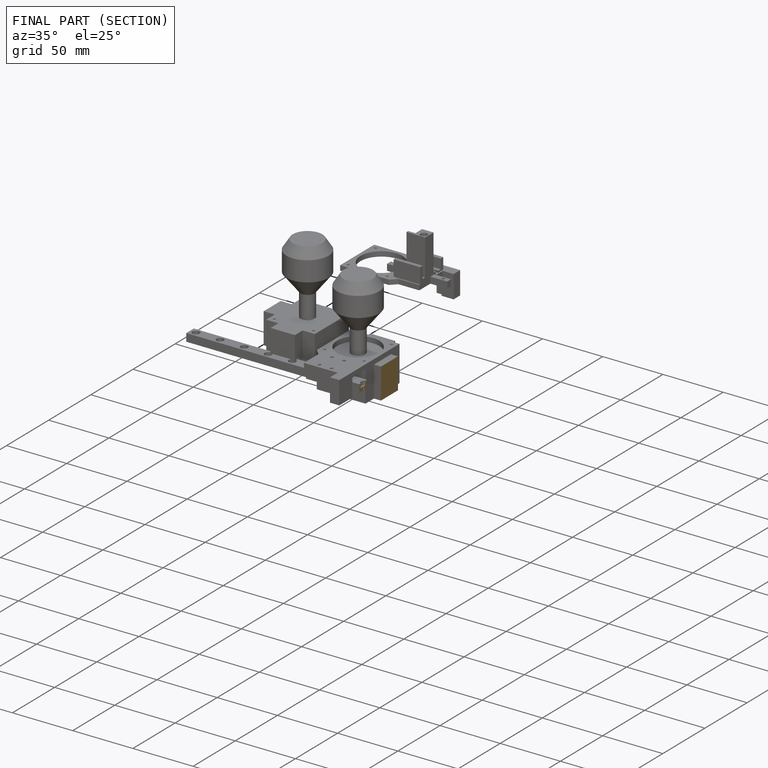
[diagram: finished part — half-section view (interior)]
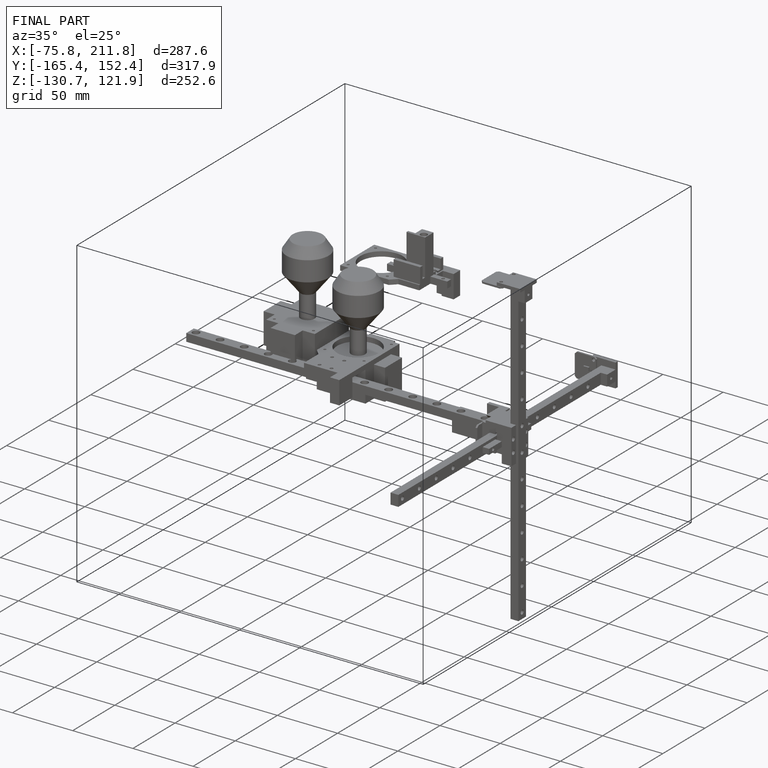
[diagram: finished part — iso view with bounding-box wireframe]
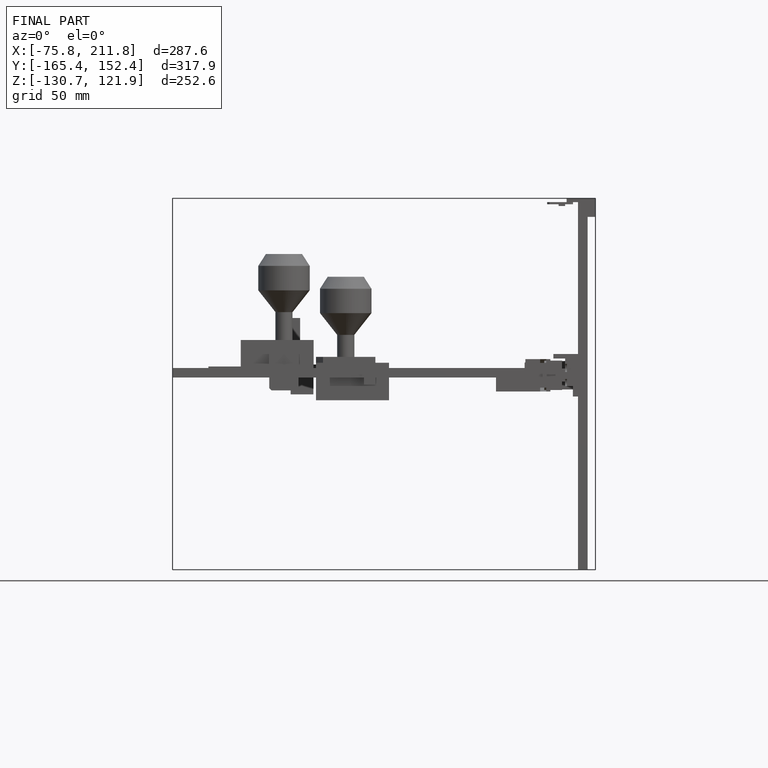
[diagram: finished part — front view with bounding-box wireframe]
